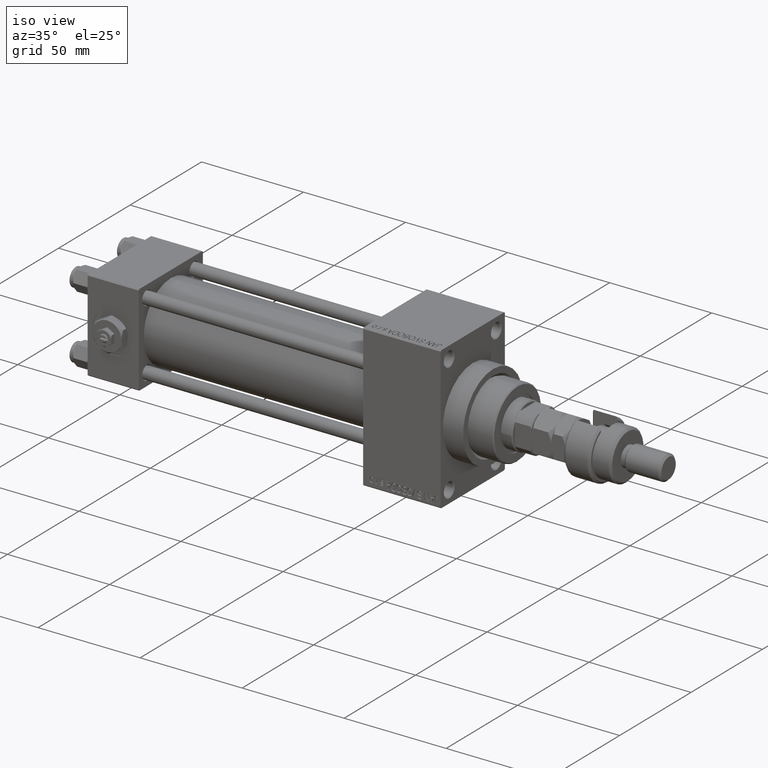
[diagram: clean part render]
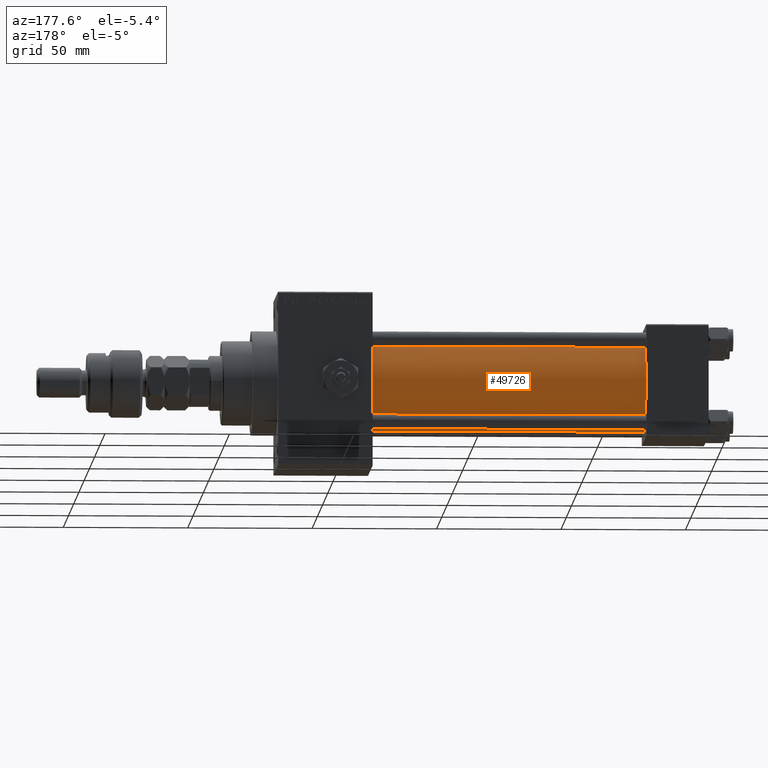
[diagram: tour spotlight — one face highlighted and labeled with its STEP entity id]
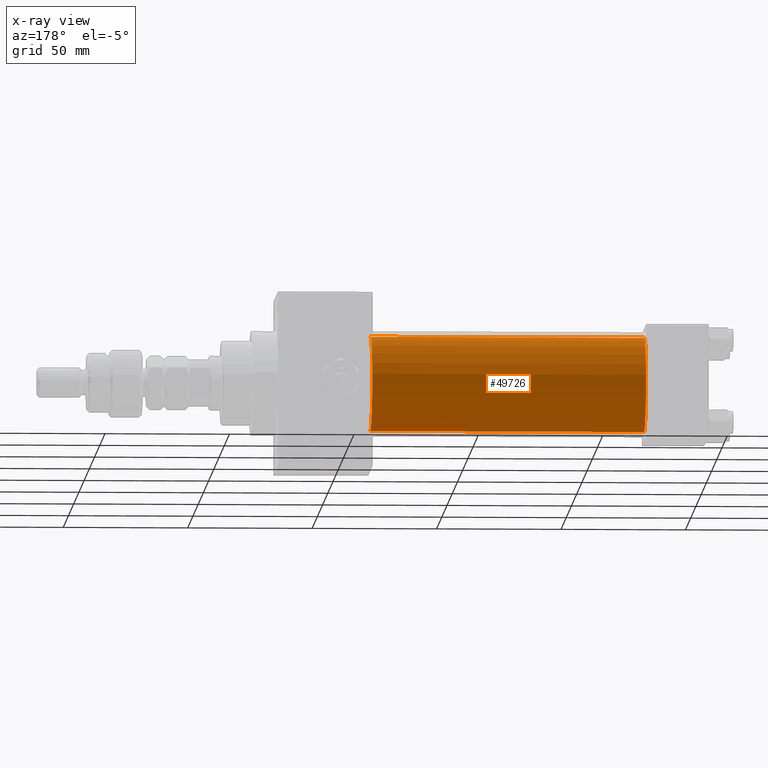
[diagram: x-ray of the same camera — body ghosted, this tour face saturated]
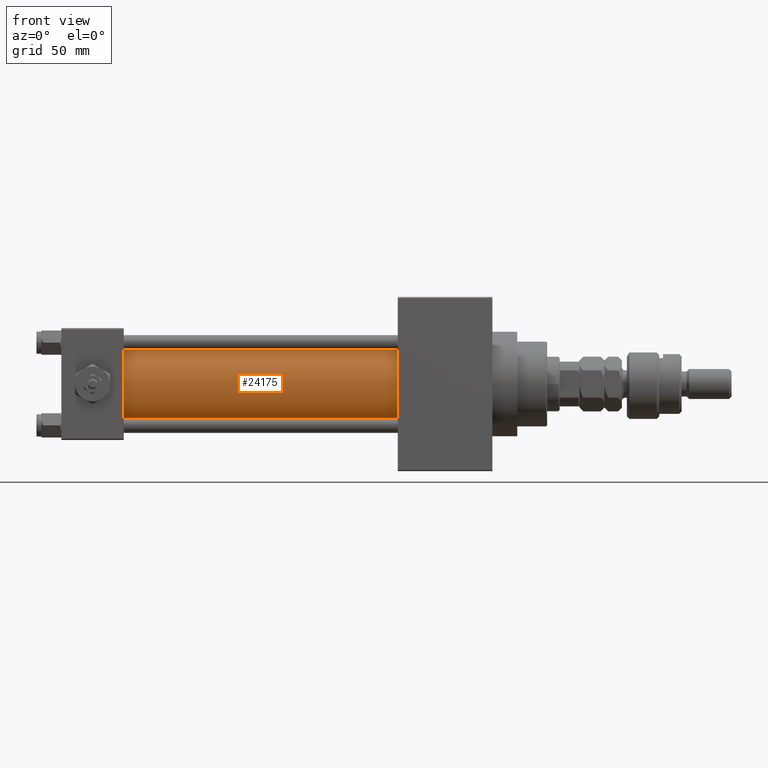
[diagram: tour spotlight — one face highlighted and labeled with its STEP entity id]
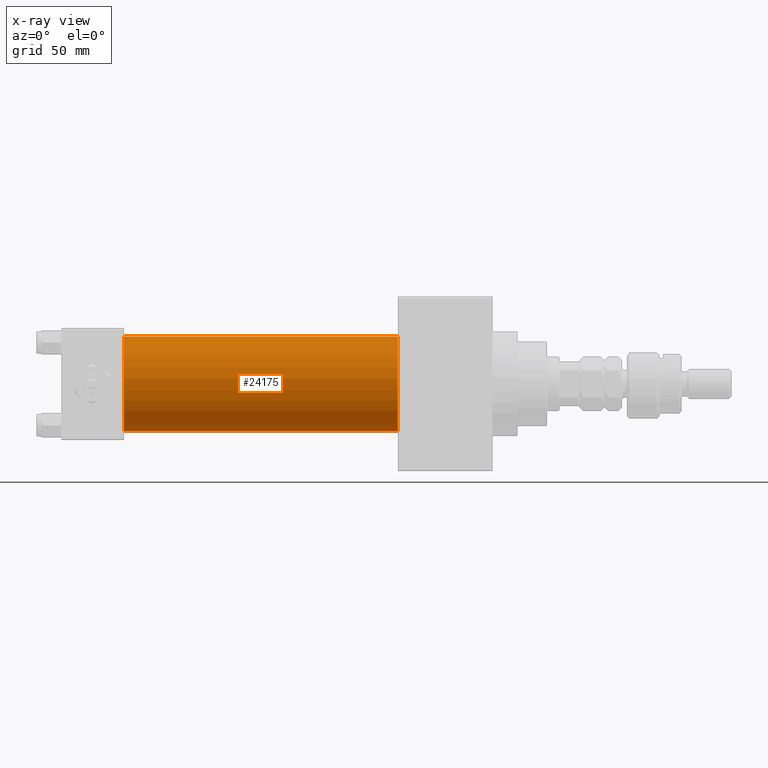
[diagram: x-ray of the same camera — body ghosted, this tour face saturated]
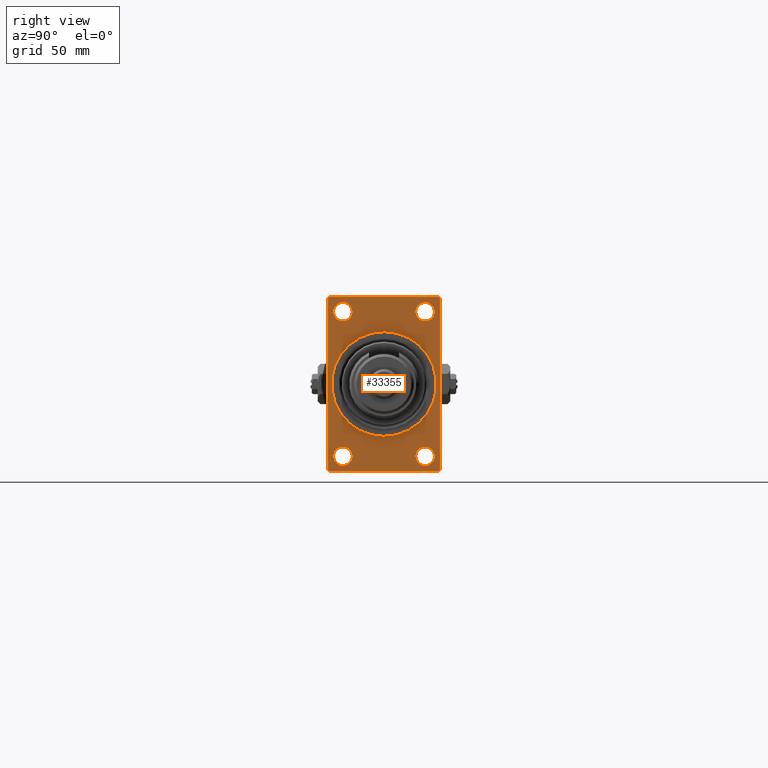
[diagram: tour spotlight — one face highlighted and labeled with its STEP entity id]
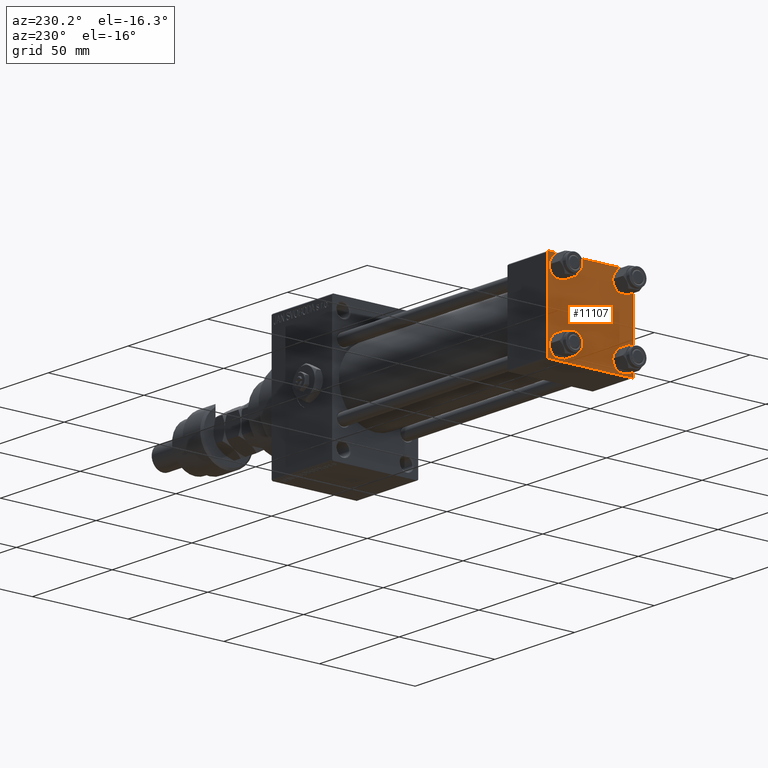
[diagram: tour spotlight — one face highlighted and labeled with its STEP entity id]
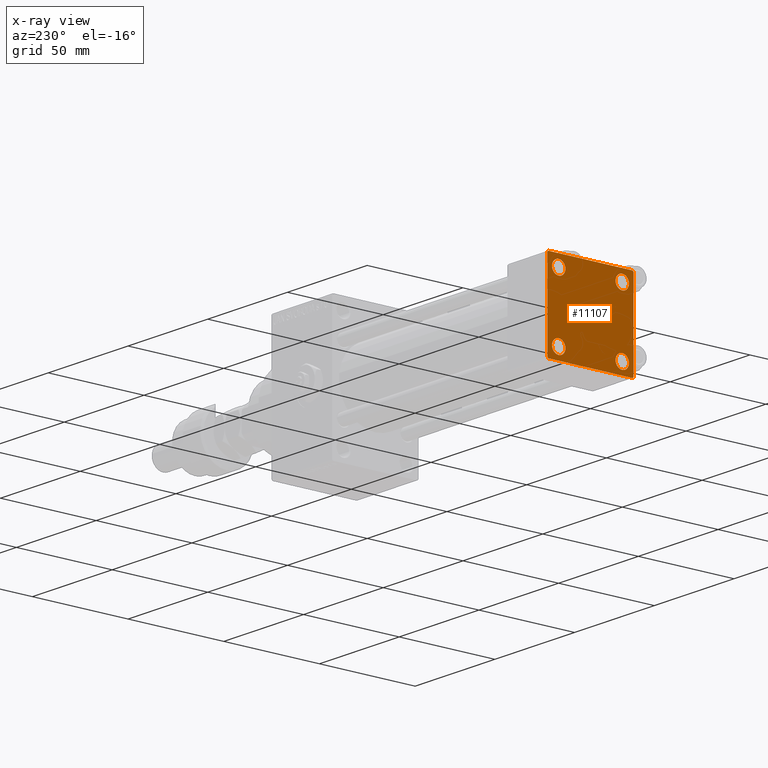
[diagram: x-ray of the same camera — body ghosted, this tour face saturated]
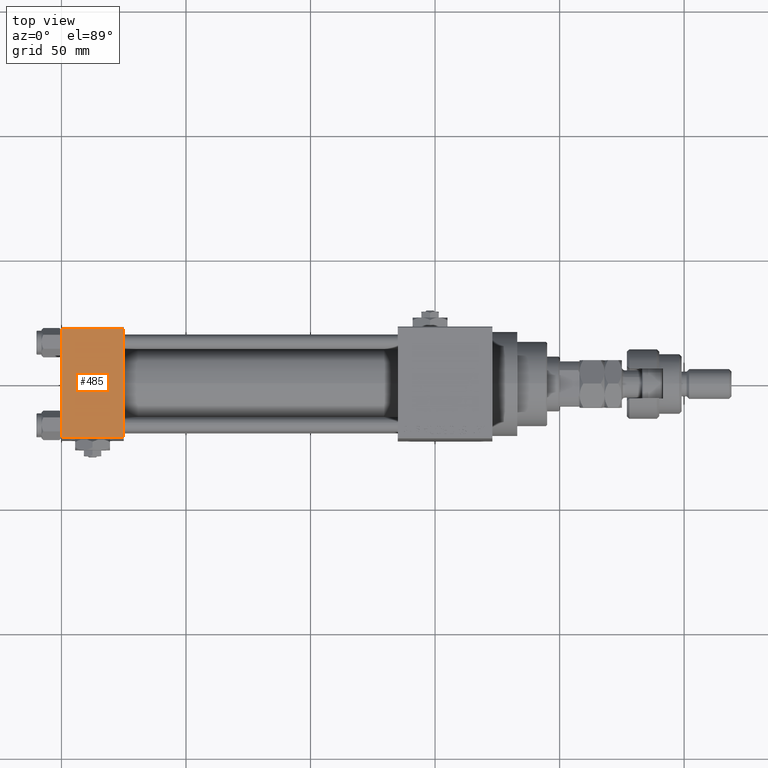
[diagram: tour spotlight — one face highlighted and labeled with its STEP entity id]
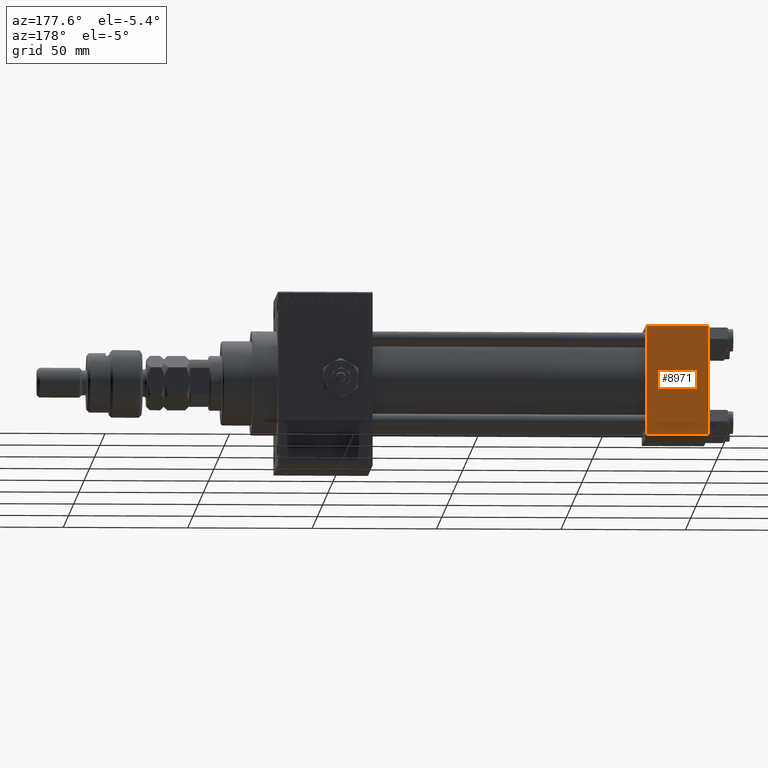
[diagram: tour spotlight — one face highlighted and labeled with its STEP entity id]
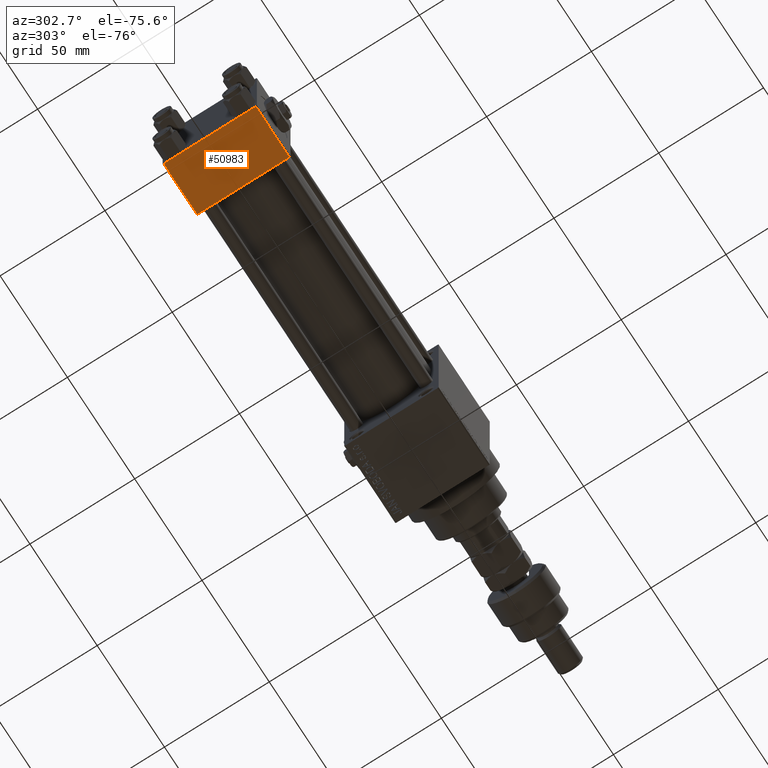
[diagram: tour spotlight — one face highlighted and labeled with its STEP entity id]
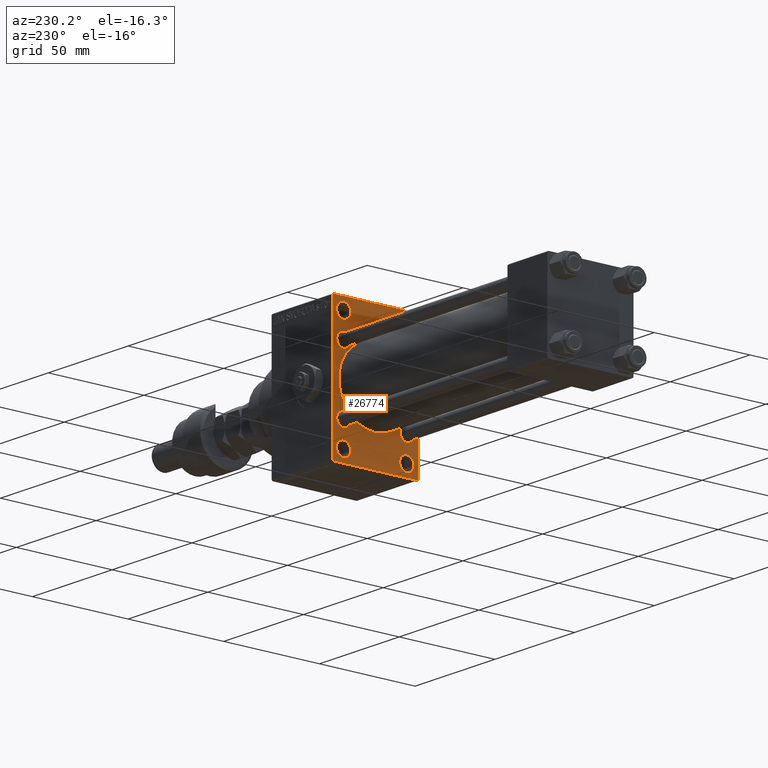
[diagram: tour spotlight — one face highlighted and labeled with its STEP entity id]
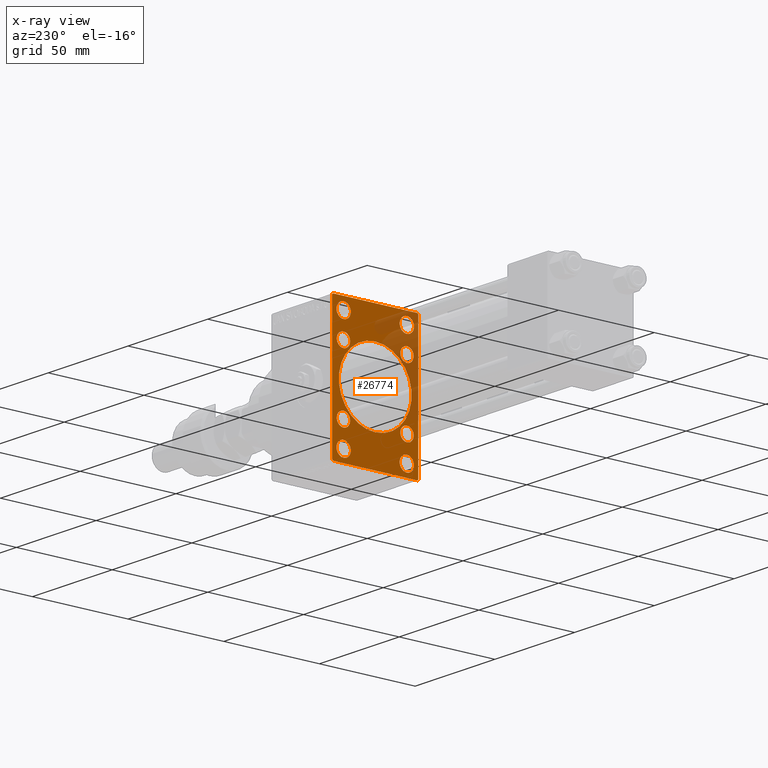
[diagram: x-ray of the same camera — body ghosted, this tour face saturated]
A machine part: a face-by-face anatomy tour. The part has 1274 B-rep faces; the first image is the clean iso view, then the 8 largest visible faces are spotlighted one at a time (largest first), each with its STEP entity span.

Face 1 — auxiliary view, entity #49726. An x-ray twin of the same camera follows (body ghosted, this face saturated) — the face is partly hidden behind the body. In plain terms, the highlighted cylindrical surface (partial cylindrical patch) has radius 19 mm, axis along (-1, -0, -0).
Definition (entity closure, byte-faithful):
#2126 = CARTESIAN_POINT ( 'NONE',  ( 135.0000000000000000, -2.602085213965210642E-15, 19.00000000000000000 ) ) ;
#5984 = CARTESIAN_POINT ( 'NONE',  ( 24.99999999999999289, -2.752562955852396712E-16, -19.00000000000000000 ) ) ;
#7841 = VERTEX_POINT ( 'NONE', #2126 ) ;
#8503 = EDGE_CURVE ( 'NONE', #7841, #49277, #49094, .T. ) ;
#9915 = EDGE_CURVE ( 'NONE', #42321, #7841, #37884, .T. ) ;
#10452 = AXIS2_PLACEMENT_3D ( 'NONE', #39525, #42935, #38774 ) ;
#12013 = CARTESIAN_POINT ( 'NONE',  ( 135.0000000000000000, -2.602085213965210642E-15, 0.000000000000000000 ) ) ;
#12125 = EDGE_CURVE ( 'NONE', #42321, #31580, #18248, .T. ) ;
#12428 = ORIENTED_EDGE ( 'NONE', *, *, #9915, .F. ) ;
#13699 = VECTOR ( 'NONE', #45189, 1000.000000000000000 ) ;
#17087 = CARTESIAN_POINT ( 'NONE',  ( 135.0000000000000000, -2.602085213965210642E-15, 19.00000000000000000 ) ) ;
#18248 = LINE ( 'NONE', #34118, #31308 ) ;
#23474 = FACE_OUTER_BOUND ( 'NONE', #42392, .T. ) ;
#23489 = ORIENTED_EDGE ( 'NONE', *, *, #38571, .T. ) ;
#23984 = DIRECTION ( 'NONE',  ( 0.000000000000000000, 0.000000000000000000, 1.000000000000000000 ) ) ;
#24468 = ORIENTED_EDGE ( 'NONE', *, *, #8503, .F. ) ;
#24494 = AXIS2_PLACEMENT_3D ( 'NONE', #24930, #49385, #45482 ) ;
#24930 = CARTESIAN_POINT ( 'NONE',  ( 24.99999999999999289, -2.602085213965210642E-15, 0.000000000000000000 ) ) ;
#31308 = VECTOR ( 'NONE', #50516, 1000.000000000000000 ) ;
#31413 = CARTESIAN_POINT ( 'NONE',  ( 135.0000000000000000, -2.752562955852396712E-16, -19.00000000000000000 ) ) ;
#31580 = VERTEX_POINT ( 'NONE', #5984 ) ;
#34118 = CARTESIAN_POINT ( 'NONE',  ( 135.0000000000000000, -2.752562955852396712E-16, -19.00000000000000000 ) ) ;
#36212 = DIRECTION ( 'NONE',  ( -1.000000000000000000, -0.000000000000000000, -0.000000000000000000 ) ) ;
#36630 = ORIENTED_EDGE ( 'NONE', *, *, #12125, .T. ) ;
#37884 = CIRCLE ( 'NONE', #10452, 19.00000000000000000 ) ;
#38571 = EDGE_CURVE ( 'NONE', #31580, #49277, #41131, .T. ) ;
#38774 = DIRECTION ( 'NONE',  ( 0.000000000000000000, 0.000000000000000000, -1.000000000000000000 ) ) ;
#38910 = CARTESIAN_POINT ( 'NONE',  ( 24.99999999999999289, -2.602085213965210642E-15, 19.00000000000000000 ) ) ;
#39525 = CARTESIAN_POINT ( 'NONE',  ( 135.0000000000000000, -2.602085213965210642E-15, 0.000000000000000000 ) ) ;
#41131 = CIRCLE ( 'NONE', #24494, 19.00000000000000000 ) ;
#42321 = VERTEX_POINT ( 'NONE', #31413 ) ;
#42392 = EDGE_LOOP ( 'NONE', ( #12428, #36630, #23489, #24468 ) ) ;
#42935 = DIRECTION ( 'NONE',  ( 1.000000000000000000, 0.000000000000000000, 0.000000000000000000 ) ) ;
#45189 = DIRECTION ( 'NONE',  ( -1.000000000000000000, -0.000000000000000000, -0.000000000000000000 ) ) ;
#45482 = DIRECTION ( 'NONE',  ( 0.000000000000000000, 0.000000000000000000, 1.000000000000000000 ) ) ;
#47666 = CYLINDRICAL_SURFACE ( 'NONE', #48066, 19.00000000000000000 ) ;
#48066 = AXIS2_PLACEMENT_3D ( 'NONE', #12013, #36212, #23984 ) ;
#49094 = LINE ( 'NONE', #17087, #13699 ) ;
#49277 = VERTEX_POINT ( 'NONE', #38910 ) ;
#49385 = DIRECTION ( 'NONE',  ( 1.000000000000000000, -0.000000000000000000, 0.000000000000000000 ) ) ;
#49726 = ADVANCED_FACE ( 'NONE', ( #23474 ), #47666, .T. ) ;
#50516 = DIRECTION ( 'NONE',  ( -1.000000000000000000, -0.000000000000000000, -0.000000000000000000 ) ) ;

Face 2 — front view, entity #24175. An x-ray twin of the same camera follows (body ghosted, this face saturated) — the face is partly hidden behind the body. In plain terms, the highlighted cylindrical surface (partial cylindrical patch) has radius 19 mm, axis along (-1, -0, -0).
Definition (entity closure, byte-faithful):
#2126 = CARTESIAN_POINT ( 'NONE',  ( 135.0000000000000000, -2.602085213965210642E-15, 19.00000000000000000 ) ) ;
#4666 = DIRECTION ( 'NONE',  ( 0.000000000000000000, 0.000000000000000000, 1.000000000000000000 ) ) ;
#5984 = CARTESIAN_POINT ( 'NONE',  ( 24.99999999999999289, -2.752562955852396712E-16, -19.00000000000000000 ) ) ;
#6757 = EDGE_CURVE ( 'NONE', #7841, #42321, #7007, .T. ) ;
#7007 = CIRCLE ( 'NONE', #36066, 19.00000000000000000 ) ;
#7584 = CARTESIAN_POINT ( 'NONE',  ( 24.99999999999999289, -2.602085213965210642E-15, 0.000000000000000000 ) ) ;
#7841 = VERTEX_POINT ( 'NONE', #2126 ) ;
#8189 = DIRECTION ( 'NONE',  ( 1.000000000000000000, 0.000000000000000000, 0.000000000000000000 ) ) ;
#8503 = EDGE_CURVE ( 'NONE', #7841, #49277, #49094, .T. ) ;
#9232 = EDGE_LOOP ( 'NONE', ( #38267, #50006, #27964, #40630 ) ) ;
#9590 = DIRECTION ( 'NONE',  ( -1.000000000000000000, -0.000000000000000000, -0.000000000000000000 ) ) ;
#12077 = AXIS2_PLACEMENT_3D ( 'NONE', #7584, #15135, #20068 ) ;
#12125 = EDGE_CURVE ( 'NONE', #42321, #31580, #18248, .T. ) ;
#12897 = CIRCLE ( 'NONE', #12077, 19.00000000000000000 ) ;
#13699 = VECTOR ( 'NONE', #45189, 1000.000000000000000 ) ;
#15135 = DIRECTION ( 'NONE',  ( 1.000000000000000000, -0.000000000000000000, 0.000000000000000000 ) ) ;
#16671 = AXIS2_PLACEMENT_3D ( 'NONE', #28853, #9590, #4666 ) ;
#17087 = CARTESIAN_POINT ( 'NONE',  ( 135.0000000000000000, -2.602085213965210642E-15, 19.00000000000000000 ) ) ;
#18248 = LINE ( 'NONE', #34118, #31308 ) ;
#20068 = DIRECTION ( 'NONE',  ( 0.000000000000000000, 0.000000000000000000, 1.000000000000000000 ) ) ;
#21171 = CARTESIAN_POINT ( 'NONE',  ( 135.0000000000000000, -2.602085213965210642E-15, 0.000000000000000000 ) ) ;
#24175 = ADVANCED_FACE ( 'NONE', ( #28592 ), #48880, .T. ) ;
#27964 = ORIENTED_EDGE ( 'NONE', *, *, #8503, .T. ) ;
#28592 = FACE_OUTER_BOUND ( 'NONE', #9232, .T. ) ;
#28853 = CARTESIAN_POINT ( 'NONE',  ( 135.0000000000000000, -2.602085213965210642E-15, 0.000000000000000000 ) ) ;
#31308 = VECTOR ( 'NONE', #50516, 1000.000000000000000 ) ;
#31413 = CARTESIAN_POINT ( 'NONE',  ( 135.0000000000000000, -2.752562955852396712E-16, -19.00000000000000000 ) ) ;
#31580 = VERTEX_POINT ( 'NONE', #5984 ) ;
#34118 = CARTESIAN_POINT ( 'NONE',  ( 135.0000000000000000, -2.752562955852396712E-16, -19.00000000000000000 ) ) ;
#36066 = AXIS2_PLACEMENT_3D ( 'NONE', #21171, #8189, #48504 ) ;
#38267 = ORIENTED_EDGE ( 'NONE', *, *, #12125, .F. ) ;
#38910 = CARTESIAN_POINT ( 'NONE',  ( 24.99999999999999289, -2.602085213965210642E-15, 19.00000000000000000 ) ) ;
#39424 = EDGE_CURVE ( 'NONE', #49277, #31580, #12897, .T. ) ;
#40630 = ORIENTED_EDGE ( 'NONE', *, *, #39424, .T. ) ;
#42321 = VERTEX_POINT ( 'NONE', #31413 ) ;
#45189 = DIRECTION ( 'NONE',  ( -1.000000000000000000, -0.000000000000000000, -0.000000000000000000 ) ) ;
#48504 = DIRECTION ( 'NONE',  ( 0.000000000000000000, 0.000000000000000000, -1.000000000000000000 ) ) ;
#48880 = CYLINDRICAL_SURFACE ( 'NONE', #16671, 19.00000000000000000 ) ;
#49094 = LINE ( 'NONE', #17087, #13699 ) ;
#49277 = VERTEX_POINT ( 'NONE', #38910 ) ;
#50006 = ORIENTED_EDGE ( 'NONE', *, *, #6757, .F. ) ;
#50516 = DIRECTION ( 'NONE',  ( -1.000000000000000000, -0.000000000000000000, -0.000000000000000000 ) ) ;

Face 3 — right view, entity #33355. In plain terms, the highlighted planar face has unit normal (-1, 0, 0).
Definition (entity closure, byte-faithful):
#824 = LINE ( 'NONE', #8366, #26024 ) ;
#1414 = ORIENTED_EDGE ( 'NONE', *, *, #21068, .F. ) ;
#1432 = CIRCLE ( 'NONE', #32987, 3.750000000000166533 ) ;
#1943 = CARTESIAN_POINT ( 'NONE',  ( 173.0000000000000284, -16.50000000000000000, 29.00000000000000711 ) ) ;
#2014 = VERTEX_POINT ( 'NONE', #42580 ) ;
#2401 = CIRCLE ( 'NONE', #43945, 3.750000000000166533 ) ;
#2703 = ORIENTED_EDGE ( 'NONE', *, *, #51000, .T. ) ;
#2996 = EDGE_CURVE ( 'NONE', #28214, #2014, #19159, .T. ) ;
#3074 = VECTOR ( 'NONE', #32194, 1000.000000000000000 ) ;
#3144 = DIRECTION ( 'NONE',  ( -1.000000000000000000, -0.000000000000000000, -0.000000000000000000 ) ) ;
#3486 = CARTESIAN_POINT ( 'NONE',  ( 173.0000000000000284, 16.50000000000000000, 29.00000000000000355 ) ) ;
#3706 = DIRECTION ( 'NONE',  ( 0.000000000000000000, 0.000000000000000000, 1.000000000000000000 ) ) ;
#4189 = AXIS2_PLACEMENT_3D ( 'NONE', #46012, #41852, #49661 ) ;
#4713 = AXIS2_PLACEMENT_3D ( 'NONE', #23997, #47678, #3706 ) ;
#4923 = CIRCLE ( 'NONE', #48123, 21.00000000000000000 ) ;
#5083 = EDGE_CURVE ( 'NONE', #27091, #24910, #38470, .T. ) ;
#5688 = LINE ( 'NONE', #44984, #13188 ) ;
#5709 = VECTOR ( 'NONE', #8788, 1000.000000000000114 ) ;
#5780 = DIRECTION ( 'NONE',  ( 0.000000000000000000, 0.000000000000000000, 1.000000000000000000 ) ) ;
#6042 = CIRCLE ( 'NONE', #39280, 21.00000000000000000 ) ;
#6184 = CARTESIAN_POINT ( 'NONE',  ( 173.0000000000000284, 0.000000000000000000, 0.000000000000000000 ) ) ;
#6764 = CARTESIAN_POINT ( 'NONE',  ( 173.0000000000000284, -16.50000000000000000, 32.75000000000017764 ) ) ;
#7303 = ORIENTED_EDGE ( 'NONE', *, *, #5083, .T. ) ;
#8041 = DIRECTION ( 'NONE',  ( -1.000000000000000000, -0.000000000000000000, -0.000000000000000000 ) ) ;
#8083 = EDGE_CURVE ( 'NONE', #43927, #27091, #8085, .T. ) ;
#8085 = LINE ( 'NONE', #28363, #17000 ) ;
#8366 = CARTESIAN_POINT ( 'NONE',  ( 173.0000000000000284, -22.00000000000000355, -35.00000000000000000 ) ) ;
#8788 = DIRECTION ( 'NONE',  ( 0.000000000000000000, -0.7071067811865474617, 0.7071067811865474617 ) ) ;
#9441 = VECTOR ( 'NONE', #18707, 1000.000000000000000 ) ;
#10647 = VERTEX_POINT ( 'NONE', #33442 ) ;
#11579 = DIRECTION ( 'NONE',  ( 0.000000000000000000, 0.000000000000000000, 1.000000000000000000 ) ) ;
#13165 = VECTOR ( 'NONE', #40094, 1000.000000000000000 ) ;
#13188 = VECTOR ( 'NONE', #21819, 1000.000000000000000 ) ;
#13277 = CARTESIAN_POINT ( 'NONE',  ( 173.0000000000000284, 2.571758278209441661E-15, -21.00000000000000000 ) ) ;
#13908 = DIRECTION ( 'NONE',  ( -1.000000000000000000, -0.000000000000000000, -0.000000000000000000 ) ) ;
#14071 = CARTESIAN_POINT ( 'NONE',  ( 173.0000000000000284, -16.50000000000000000, 29.00000000000000711 ) ) ;
#14311 = FACE_BOUND ( 'NONE', #32850, .T. ) ;
#14468 = CARTESIAN_POINT ( 'NONE',  ( 173.0000000000000284, 22.49999999999999645, 35.00000000000000000 ) ) ;
#14611 = EDGE_CURVE ( 'NONE', #28018, #41266, #37087, .T. ) ;
#14705 = CARTESIAN_POINT ( 'NONE',  ( 173.0000000000000284, 22.00000000000002132, -35.00000000000000000 ) ) ;
#14946 = EDGE_CURVE ( 'NONE', #41266, #28018, #28771, .T. ) ;
#16651 = DIRECTION ( 'NONE',  ( 0.000000000000000000, -1.000000000000000000, 0.000000000000000000 ) ) ;
#16654 = AXIS2_PLACEMENT_3D ( 'NONE', #3486, #31315, #5780 ) ;
#16681 = DIRECTION ( 'NONE',  ( 0.000000000000000000, 0.7071067811865474617, -0.7071067811865474617 ) ) ;
#17000 = VECTOR ( 'NONE', #16651, 1000.000000000000000 ) ;
#17811 = CARTESIAN_POINT ( 'NONE',  ( 173.0000000000000284, 22.49999999999999645, 34.50000000000000000 ) ) ;
#17956 = FACE_BOUND ( 'NONE', #43365, .T. ) ;
#18707 = DIRECTION ( 'NONE',  ( -0.000000000000000000, -0.7071067811865279218, -0.7071067811865671127 ) ) ;
#19159 = CIRCLE ( 'NONE', #16654, 3.750000000000169642 ) ;
#19240 = ORIENTED_EDGE ( 'NONE', *, *, #47014, .T. ) ;
#19844 = EDGE_CURVE ( 'NONE', #30198, #43927, #24141, .T. ) ;
#20321 = EDGE_CURVE ( 'NONE', #24910, #24196, #43739, .T. ) ;
#21068 = EDGE_CURVE ( 'NONE', #32317, #27065, #4923, .T. ) ;
#21083 = ORIENTED_EDGE ( 'NONE', *, *, #51122, .T. ) ;
#21750 = ORIENTED_EDGE ( 'NONE', *, *, #24568, .F. ) ;
#21819 = DIRECTION ( 'NONE',  ( -0.000000000000000000, 0.7071067811865279218, 0.7071067811865671127 ) ) ;
#21910 = EDGE_LOOP ( 'NONE', ( #31747, #51111, #33027, #2703, #21750, #47949, #49852, #7303 ) ) ;
#22053 = DIRECTION ( 'NONE',  ( 1.000000000000000000, 0.000000000000000000, 0.000000000000000000 ) ) ;
#22901 = DIRECTION ( 'NONE',  ( -0.000000000000000000, 0.000000000000000000, 1.000000000000000000 ) ) ;
#23207 = CARTESIAN_POINT ( 'NONE',  ( 173.0000000000000284, -22.50000000000000355, 35.00000000000000000 ) ) ;
#23333 = CARTESIAN_POINT ( 'NONE',  ( 173.0000000000000284, 16.50000000000000000, 32.75000000000017764 ) ) ;
#23835 = CARTESIAN_POINT ( 'NONE',  ( 173.0000000000000284, 0.000000000000000000, 0.000000000000000000 ) ) ;
#23886 = VERTEX_POINT ( 'NONE', #6764 ) ;
#23997 = CARTESIAN_POINT ( 'NONE',  ( 173.0000000000000284, -16.50000000000000000, -28.99999999999999289 ) ) ;
#24141 = LINE ( 'NONE', #36867, #5709 ) ;
#24196 = VERTEX_POINT ( 'NONE', #32243 ) ;
#24285 = EDGE_CURVE ( 'NONE', #2014, #28214, #49052, .T. ) ;
#24374 = DIRECTION ( 'NONE',  ( 0.000000000000000000, 0.000000000000000000, 1.000000000000000000 ) ) ;
#24568 = EDGE_CURVE ( 'NONE', #30198, #38349, #37623, .T. ) ;
#24639 = LINE ( 'NONE', #28290, #3074 ) ;
#24909 = CARTESIAN_POINT ( 'NONE',  ( 173.0000000000000284, -16.50000000000000000, -32.75000000000017053 ) ) ;
#24910 = VERTEX_POINT ( 'NONE', #46610 ) ;
#25526 = ORIENTED_EDGE ( 'NONE', *, *, #14611, .T. ) ;
#25740 = ORIENTED_EDGE ( 'NONE', *, *, #33760, .F. ) ;
#25819 = ORIENTED_EDGE ( 'NONE', *, *, #44020, .T. ) ;
#25906 = ORIENTED_EDGE ( 'NONE', *, *, #2996, .T. ) ;
#26024 = VECTOR ( 'NONE', #16681, 1000.000000000000114 ) ;
#26534 = FACE_BOUND ( 'NONE', #45699, .T. ) ;
#27065 = VERTEX_POINT ( 'NONE', #31064 ) ;
#27091 = VERTEX_POINT ( 'NONE', #35226 ) ;
#27231 = DIRECTION ( 'NONE',  ( 0.000000000000000000, 0.000000000000000000, -1.000000000000000000 ) ) ;
#27967 = EDGE_LOOP ( 'NONE', ( #25819, #31703 ) ) ;
#28018 = VERTEX_POINT ( 'NONE', #24909 ) ;
#28063 = CARTESIAN_POINT ( 'NONE',  ( 173.0000000000000284, 16.50000000000000000, -28.99999999999999289 ) ) ;
#28214 = VERTEX_POINT ( 'NONE', #23333 ) ;
#28290 = CARTESIAN_POINT ( 'NONE',  ( 173.0000000000000284, 22.49999999999999645, -35.00000000000000000 ) ) ;
#28363 = CARTESIAN_POINT ( 'NONE',  ( 173.0000000000000284, 22.49999999999999645, 35.00000000000000000 ) ) ;
#28365 = CARTESIAN_POINT ( 'NONE',  ( 173.0000000000000284, -16.50000000000000000, -25.24999999999982592 ) ) ;
#28771 = CIRCLE ( 'NONE', #4713, 3.750000000000166533 ) ;
#29654 = FACE_OUTER_BOUND ( 'NONE', #21910, .T. ) ;
#30168 = EDGE_CURVE ( 'NONE', #23886, #41467, #47624, .T. ) ;
#30173 = CARTESIAN_POINT ( 'NONE',  ( 173.0000000000000284, 0.000000000000000000, 0.000000000000000000 ) ) ;
#30198 = VERTEX_POINT ( 'NONE', #17811 ) ;
#30718 = DIRECTION ( 'NONE',  ( 0.000000000000000000, 0.000000000000000000, 1.000000000000000000 ) ) ;
#31064 = CARTESIAN_POINT ( 'NONE',  ( 173.0000000000000284, 0.000000000000000000, 21.00000000000000000 ) ) ;
#31315 = DIRECTION ( 'NONE',  ( -1.000000000000000000, -0.000000000000000000, -0.000000000000000000 ) ) ;
#31703 = ORIENTED_EDGE ( 'NONE', *, *, #30168, .T. ) ;
#31747 = ORIENTED_EDGE ( 'NONE', *, *, #20321, .T. ) ;
#32083 = VERTEX_POINT ( 'NONE', #34162 ) ;
#32194 = DIRECTION ( 'NONE',  ( 0.000000000000000000, -1.000000000000000000, 0.000000000000000000 ) ) ;
#32243 = CARTESIAN_POINT ( 'NONE',  ( 173.0000000000000284, -22.50000000000000355, -34.50000000000000000 ) ) ;
#32317 = VERTEX_POINT ( 'NONE', #13277 ) ;
#32850 = EDGE_LOOP ( 'NONE', ( #19240, #21083 ) ) ;
#32987 = AXIS2_PLACEMENT_3D ( 'NONE', #28063, #8041, #39779 ) ;
#33027 = ORIENTED_EDGE ( 'NONE', *, *, #43280, .F. ) ;
#33355 = ADVANCED_FACE ( 'NONE', ( #49968, #46312, #14311, #17956, #26534, #29654 ), #45534, .F. ) ;
#33442 = CARTESIAN_POINT ( 'NONE',  ( 173.0000000000000284, -21.99999999999998934, -35.00000000000000000 ) ) ;
#33500 = DIRECTION ( 'NONE',  ( 0.000000000000000000, 0.000000000000000000, -1.000000000000000000 ) ) ;
#33760 = EDGE_CURVE ( 'NONE', #27065, #32317, #6042, .T. ) ;
#33982 = DIRECTION ( 'NONE',  ( 0.000000000000000000, 0.000000000000000000, -1.000000000000000000 ) ) ;
#34110 = VERTEX_POINT ( 'NONE', #14705 ) ;
#34162 = CARTESIAN_POINT ( 'NONE',  ( 173.0000000000000284, 16.50000000000000000, -25.24999999999982592 ) ) ;
#34501 = EDGE_CURVE ( 'NONE', #24196, #10647, #824, .T. ) ;
#35226 = CARTESIAN_POINT ( 'NONE',  ( 173.0000000000000284, -22.00000000000001776, 35.00000000000000000 ) ) ;
#35324 = CARTESIAN_POINT ( 'NONE',  ( 173.0000000000000284, 16.50000000000000000, -28.99999999999999289 ) ) ;
#36505 = ORIENTED_EDGE ( 'NONE', *, *, #14946, .T. ) ;
#36867 = CARTESIAN_POINT ( 'NONE',  ( 173.0000000000000284, 21.99999999999999645, 35.00000000000000000 ) ) ;
#37087 = CIRCLE ( 'NONE', #42947, 3.750000000000166533 ) ;
#37622 = AXIS2_PLACEMENT_3D ( 'NONE', #1943, #13908, #42533 ) ;
#37623 = LINE ( 'NONE', #14468, #47421 ) ;
#38349 = VERTEX_POINT ( 'NONE', #47593 ) ;
#38443 = AXIS2_PLACEMENT_3D ( 'NONE', #30173, #46050, #22901 ) ;
#38470 = LINE ( 'NONE', #50454, #9441 ) ;
#38474 = ORIENTED_EDGE ( 'NONE', *, *, #24285, .T. ) ;
#39280 = AXIS2_PLACEMENT_3D ( 'NONE', #6184, #22053, #33500 ) ;
#39779 = DIRECTION ( 'NONE',  ( 0.000000000000000000, 0.000000000000000000, 1.000000000000000000 ) ) ;
#40094 = DIRECTION ( 'NONE',  ( 0.000000000000000000, 0.000000000000000000, -1.000000000000000000 ) ) ;
#40543 = VERTEX_POINT ( 'NONE', #47830 ) ;
#41266 = VERTEX_POINT ( 'NONE', #28365 ) ;
#41467 = VERTEX_POINT ( 'NONE', #47854 ) ;
#41852 = DIRECTION ( 'NONE',  ( -1.000000000000000000, -0.000000000000000000, -0.000000000000000000 ) ) ;
#41907 = CARTESIAN_POINT ( 'NONE',  ( 173.0000000000000284, 21.99999999999999645, 35.00000000000000000 ) ) ;
#42533 = DIRECTION ( 'NONE',  ( 0.000000000000000000, 0.000000000000000000, 1.000000000000000000 ) ) ;
#42580 = CARTESIAN_POINT ( 'NONE',  ( 173.0000000000000284, 16.50000000000000000, 25.24999999999983658 ) ) ;
#42947 = AXIS2_PLACEMENT_3D ( 'NONE', #50637, #46726, #11579 ) ;
#43280 = EDGE_CURVE ( 'NONE', #34110, #10647, #24639, .T. ) ;
#43365 = EDGE_LOOP ( 'NONE', ( #38474, #25906 ) ) ;
#43739 = LINE ( 'NONE', #23207, #13165 ) ;
#43927 = VERTEX_POINT ( 'NONE', #41907 ) ;
#43945 = AXIS2_PLACEMENT_3D ( 'NONE', #35324, #44157, #24374 ) ;
#44020 = EDGE_CURVE ( 'NONE', #41467, #23886, #46306, .T. ) ;
#44157 = DIRECTION ( 'NONE',  ( -1.000000000000000000, -0.000000000000000000, -0.000000000000000000 ) ) ;
#44631 = AXIS2_PLACEMENT_3D ( 'NONE', #14071, #3144, #30718 ) ;
#44984 = CARTESIAN_POINT ( 'NONE',  ( 173.0000000000000284, 22.49999999999999645, -34.50000000000000000 ) ) ;
#45534 = PLANE ( 'NONE',  #38443 ) ;
#45699 = EDGE_LOOP ( 'NONE', ( #25740, #1414 ) ) ;
#46012 = CARTESIAN_POINT ( 'NONE',  ( 173.0000000000000284, 16.50000000000000000, 29.00000000000000355 ) ) ;
#46050 = DIRECTION ( 'NONE',  ( -1.000000000000000000, 0.000000000000000000, -0.000000000000000000 ) ) ;
#46085 = EDGE_LOOP ( 'NONE', ( #25526, #36505 ) ) ;
#46306 = CIRCLE ( 'NONE', #44631, 3.750000000000166533 ) ;
#46312 = FACE_BOUND ( 'NONE', #46085, .T. ) ;
#46610 = CARTESIAN_POINT ( 'NONE',  ( 173.0000000000000284, -22.50000000000000355, 34.50000000000000000 ) ) ;
#46726 = DIRECTION ( 'NONE',  ( -1.000000000000000000, -0.000000000000000000, -0.000000000000000000 ) ) ;
#47014 = EDGE_CURVE ( 'NONE', #40543, #32083, #1432, .T. ) ;
#47421 = VECTOR ( 'NONE', #33982, 1000.000000000000000 ) ;
#47593 = CARTESIAN_POINT ( 'NONE',  ( 173.0000000000000284, 22.49999999999999645, -34.50000000000000000 ) ) ;
#47624 = CIRCLE ( 'NONE', #37622, 3.750000000000166533 ) ;
#47678 = DIRECTION ( 'NONE',  ( -1.000000000000000000, -0.000000000000000000, -0.000000000000000000 ) ) ;
#47830 = CARTESIAN_POINT ( 'NONE',  ( 173.0000000000000284, 16.50000000000000000, -32.75000000000017053 ) ) ;
#47854 = CARTESIAN_POINT ( 'NONE',  ( 173.0000000000000284, -16.50000000000000000, 25.24999999999984368 ) ) ;
#47949 = ORIENTED_EDGE ( 'NONE', *, *, #19844, .T. ) ;
#48123 = AXIS2_PLACEMENT_3D ( 'NONE', #23835, #50916, #27231 ) ;
#49052 = CIRCLE ( 'NONE', #4189, 3.750000000000169642 ) ;
#49661 = DIRECTION ( 'NONE',  ( 0.000000000000000000, 0.000000000000000000, 1.000000000000000000 ) ) ;
#49852 = ORIENTED_EDGE ( 'NONE', *, *, #8083, .T. ) ;
#49968 = FACE_BOUND ( 'NONE', #27967, .T. ) ;
#50454 = CARTESIAN_POINT ( 'NONE',  ( 173.0000000000000284, -22.50000000000000355, 34.50000000000000000 ) ) ;
#50637 = CARTESIAN_POINT ( 'NONE',  ( 173.0000000000000284, -16.50000000000000000, -28.99999999999999289 ) ) ;
#50916 = DIRECTION ( 'NONE',  ( 1.000000000000000000, 0.000000000000000000, 0.000000000000000000 ) ) ;
#51000 = EDGE_CURVE ( 'NONE', #34110, #38349, #5688, .T. ) ;
#51111 = ORIENTED_EDGE ( 'NONE', *, *, #34501, .T. ) ;
#51122 = EDGE_CURVE ( 'NONE', #32083, #40543, #2401, .T. ) ;

Face 4 — auxiliary view, entity #11107. An x-ray twin of the same camera follows (body ghosted, this face saturated) — the face is partly hidden behind the body. In plain terms, the highlighted planar face has unit normal (-1, 0, 0).
Definition (entity closure, byte-faithful):
#810 = DIRECTION ( 'NONE',  ( 0.000000000000000000, 0.000000000000000000, 1.000000000000000000 ) ) ;
#821 = DIRECTION ( 'NONE',  ( 0.000000000000000000, 0.000000000000000000, 1.000000000000000000 ) ) ;
#1437 = VECTOR ( 'NONE', #22795, 1000.000000000000000 ) ;
#1899 = EDGE_CURVE ( 'NONE', #11172, #21914, #20896, .T. ) ;
#2371 = CARTESIAN_POINT ( 'NONE',  ( -0.000000000000000000, -22.24999999999984013, 22.25000000000015277 ) ) ;
#2550 = CARTESIAN_POINT ( 'NONE',  ( 0.000000000000000000, -16.59999999999999076, 16.60000000000000853 ) ) ;
#2802 = ORIENTED_EDGE ( 'NONE', *, *, #23687, .T. ) ;
#2976 = CARTESIAN_POINT ( 'NONE',  ( 0.000000000000000000, -16.59999999999999076, -16.60000000000000853 ) ) ;
#3466 = EDGE_CURVE ( 'NONE', #39254, #42206, #15833, .T. ) ;
#3586 = VECTOR ( 'NONE', #49709, 1000.000000000000000 ) ;
#4089 = VERTEX_POINT ( 'NONE', #32504 ) ;
#5231 = AXIS2_PLACEMENT_3D ( 'NONE', #2550, #22842, #38707 ) ;
#5456 = CARTESIAN_POINT ( 'NONE',  ( 0.000000000000000000, 16.59999999999999787, -16.60000000000000497 ) ) ;
#5470 = CARTESIAN_POINT ( 'NONE',  ( 0.000000000000000000, -22.50000000000000000, 22.50000000000000000 ) ) ;
#6079 = VERTEX_POINT ( 'NONE', #15629 ) ;
#6152 = DIRECTION ( 'NONE',  ( 1.000000000000000000, -0.000000000000000000, 0.000000000000000000 ) ) ;
#6197 = FACE_BOUND ( 'NONE', #6595, .T. ) ;
#6595 = EDGE_LOOP ( 'NONE', ( #37615, #18438 ) ) ;
#6980 = CARTESIAN_POINT ( 'NONE',  ( 0.000000000000000000, 16.59999999999999787, -16.60000000000000497 ) ) ;
#7094 = CARTESIAN_POINT ( 'NONE',  ( 0.000000000000000000, 16.59999999999999787, 16.60000000000000497 ) ) ;
#8365 = CARTESIAN_POINT ( 'NONE',  ( 0.000000000000000000, -16.59999999999999076, 16.60000000000000853 ) ) ;
#8545 = CARTESIAN_POINT ( 'NONE',  ( 0.000000000000000000, 21.99999999999999289, -22.49999999999999645 ) ) ;
#8795 = LINE ( 'NONE', #28306, #21533 ) ;
#8932 = CARTESIAN_POINT ( 'NONE',  ( 0.000000000000000000, -21.99999999999997868, 22.50000000000000000 ) ) ;
#9046 = EDGE_CURVE ( 'NONE', #21914, #11172, #17042, .T. ) ;
#9658 = ORIENTED_EDGE ( 'NONE', *, *, #13488, .T. ) ;
#9692 = VERTEX_POINT ( 'NONE', #26609 ) ;
#10017 = DIRECTION ( 'NONE',  ( 0.000000000000000000, 0.7071067811865474617, -0.7071067811865474617 ) ) ;
#10162 = LINE ( 'NONE', #5470, #3586 ) ;
#10413 = DIRECTION ( 'NONE',  ( 1.000000000000000000, -0.000000000000000000, 0.000000000000000000 ) ) ;
#11107 = ADVANCED_FACE ( 'NONE', ( #22067, #41065, #17649, #6197, #33513 ), #46001, .T. ) ;
#11172 = VERTEX_POINT ( 'NONE', #34297 ) ;
#12971 = DIRECTION ( 'NONE',  ( -0.000000000000000000, -0.7071067811865426878, -0.7071067811865524577 ) ) ;
#13235 = DIRECTION ( 'NONE',  ( 0.000000000000000000, -1.000000000000000000, -7.709882115452476934E-17 ) ) ;
#13488 = EDGE_CURVE ( 'NONE', #19391, #6079, #31147, .T. ) ;
#13740 = DIRECTION ( 'NONE',  ( -0.000000000000000000, 0.000000000000000000, 1.000000000000000000 ) ) ;
#13789 = DIRECTION ( 'NONE',  ( 0.000000000000000000, 0.000000000000000000, 1.000000000000000000 ) ) ;
#13943 = CARTESIAN_POINT ( 'NONE',  ( 0.000000000000000000, -16.59999999999999076, 13.10000000000001030 ) ) ;
#14227 = EDGE_LOOP ( 'NONE', ( #15411, #48310 ) ) ;
#14293 = CARTESIAN_POINT ( 'NONE',  ( 0.000000000000000000, -22.50000000000000000, 22.00000000000000000 ) ) ;
#14472 = VERTEX_POINT ( 'NONE', #13943 ) ;
#15411 = ORIENTED_EDGE ( 'NONE', *, *, #3466, .T. ) ;
#15535 = DIRECTION ( 'NONE',  ( 0.000000000000000000, 0.000000000000000000, 1.000000000000000000 ) ) ;
#15629 = CARTESIAN_POINT ( 'NONE',  ( 0.000000000000000000, 22.50000000000000000, -21.99999999999996803 ) ) ;
#15833 = CIRCLE ( 'NONE', #22501, 3.499999999999996003 ) ;
#15852 = VECTOR ( 'NONE', #10017, 1000.000000000000114 ) ;
#16719 = ORIENTED_EDGE ( 'NONE', *, *, #50997, .F. ) ;
#16880 = CIRCLE ( 'NONE', #34354, 3.499999999999996003 ) ;
#17042 = CIRCLE ( 'NONE', #27862, 3.499999999999996003 ) ;
#17066 = VERTEX_POINT ( 'NONE', #8545 ) ;
#17468 = EDGE_LOOP ( 'NONE', ( #17750, #40329 ) ) ;
#17649 = FACE_BOUND ( 'NONE', #14227, .T. ) ;
#17750 = ORIENTED_EDGE ( 'NONE', *, *, #29994, .T. ) ;
#17907 = DIRECTION ( 'NONE',  ( -1.000000000000000000, 0.000000000000000000, -0.000000000000000000 ) ) ;
#18438 = ORIENTED_EDGE ( 'NONE', *, *, #31474, .T. ) ;
#19273 = AXIS2_PLACEMENT_3D ( 'NONE', #40767, #6152, #48572 ) ;
#19322 = DIRECTION ( 'NONE',  ( 0.000000000000000000, 0.000000000000000000, 1.000000000000000000 ) ) ;
#19391 = VERTEX_POINT ( 'NONE', #33875 ) ;
#20330 = DIRECTION ( 'NONE',  ( 1.000000000000000000, -0.000000000000000000, 0.000000000000000000 ) ) ;
#20779 = EDGE_CURVE ( 'NONE', #17066, #4089, #8795, .T. ) ;
#20896 = CIRCLE ( 'NONE', #19273, 3.499999999999996003 ) ;
#20928 = ORIENTED_EDGE ( 'NONE', *, *, #48758, .T. ) ;
#21045 = CARTESIAN_POINT ( 'NONE',  ( 0.000000000000000000, 16.59999999999999787, 13.10000000000000675 ) ) ;
#21533 = VECTOR ( 'NONE', #36625, 1000.000000000000000 ) ;
#21559 = CARTESIAN_POINT ( 'NONE',  ( 0.000000000000000000, 22.50000000000000000, 22.50000000000000355 ) ) ;
#21914 = VERTEX_POINT ( 'NONE', #50007 ) ;
#22067 = FACE_BOUND ( 'NONE', #17468, .T. ) ;
#22234 = DIRECTION ( 'NONE',  ( 1.000000000000000000, -0.000000000000000000, 0.000000000000000000 ) ) ;
#22501 = AXIS2_PLACEMENT_3D ( 'NONE', #5456, #28379, #810 ) ;
#22795 = DIRECTION ( 'NONE',  ( 0.000000000000000000, -0.7071067811865426878, 0.7071067811865524577 ) ) ;
#22805 = EDGE_LOOP ( 'NONE', ( #28994, #25034 ) ) ;
#22842 = DIRECTION ( 'NONE',  ( 1.000000000000000000, -0.000000000000000000, 0.000000000000000000 ) ) ;
#23464 = AXIS2_PLACEMENT_3D ( 'NONE', #8365, #20330, #821 ) ;
#23687 = EDGE_CURVE ( 'NONE', #9692, #19391, #45650, .T. ) ;
#23930 = VECTOR ( 'NONE', #12971, 1000.000000000000000 ) ;
#24181 = VERTEX_POINT ( 'NONE', #21045 ) ;
#24280 = CIRCLE ( 'NONE', #23464, 3.499999999999996003 ) ;
#24746 = AXIS2_PLACEMENT_3D ( 'NONE', #6980, #27502, #15535 ) ;
#25034 = ORIENTED_EDGE ( 'NONE', *, *, #9046, .T. ) ;
#25135 = ORIENTED_EDGE ( 'NONE', *, *, #34631, .F. ) ;
#26400 = CARTESIAN_POINT ( 'NONE',  ( 0.000000000000000000, 22.24999999999999645, 22.24999999999999645 ) ) ;
#26609 = CARTESIAN_POINT ( 'NONE',  ( 0.000000000000000000, 21.99999999999999289, 22.50000000000000355 ) ) ;
#27502 = DIRECTION ( 'NONE',  ( 1.000000000000000000, -0.000000000000000000, 0.000000000000000000 ) ) ;
#27862 = AXIS2_PLACEMENT_3D ( 'NONE', #2976, #22234, #42530 ) ;
#28219 = VERTEX_POINT ( 'NONE', #8932 ) ;
#28306 = CARTESIAN_POINT ( 'NONE',  ( 0.000000000000000000, 22.50000000000000000, -22.49999999999999645 ) ) ;
#28379 = DIRECTION ( 'NONE',  ( 1.000000000000000000, -0.000000000000000000, 0.000000000000000000 ) ) ;
#28994 = ORIENTED_EDGE ( 'NONE', *, *, #1899, .T. ) ;
#29994 = EDGE_CURVE ( 'NONE', #43728, #14472, #46775, .T. ) ;
#30423 = AXIS2_PLACEMENT_3D ( 'NONE', #33257, #17907, #13740 ) ;
#31147 = LINE ( 'NONE', #34296, #48682 ) ;
#31347 = CARTESIAN_POINT ( 'NONE',  ( 0.000000000000000000, -22.25000000000014566, -22.24999999999984013 ) ) ;
#31474 = EDGE_CURVE ( 'NONE', #24181, #44792, #16880, .T. ) ;
#32242 = EDGE_CURVE ( 'NONE', #44792, #24181, #41816, .T. ) ;
#32340 = EDGE_CURVE ( 'NONE', #14472, #43728, #24280, .T. ) ;
#32465 = ORIENTED_EDGE ( 'NONE', *, *, #44060, .T. ) ;
#32504 = CARTESIAN_POINT ( 'NONE',  ( 0.000000000000000000, -21.99999999999997158, -22.50000000000000711 ) ) ;
#33257 = CARTESIAN_POINT ( 'NONE',  ( 0.000000000000000000, 0.000000000000000000, 0.000000000000000000 ) ) ;
#33513 = FACE_OUTER_BOUND ( 'NONE', #51479, .T. ) ;
#33563 = CARTESIAN_POINT ( 'NONE',  ( 0.000000000000000000, 16.59999999999999787, 16.60000000000000497 ) ) ;
#33875 = CARTESIAN_POINT ( 'NONE',  ( 0.000000000000000000, 22.50000000000000000, 21.99999999999999645 ) ) ;
#34296 = CARTESIAN_POINT ( 'NONE',  ( 0.000000000000000000, 22.50000000000000000, 22.50000000000000355 ) ) ;
#34297 = CARTESIAN_POINT ( 'NONE',  ( 0.000000000000000000, -16.59999999999999076, -13.10000000000001030 ) ) ;
#34354 = AXIS2_PLACEMENT_3D ( 'NONE', #33563, #10413, #13789 ) ;
#34631 = EDGE_CURVE ( 'NONE', #38820, #43841, #10162, .T. ) ;
#36156 = CARTESIAN_POINT ( 'NONE',  ( 0.000000000000000000, 16.59999999999999787, -20.10000000000000142 ) ) ;
#36625 = DIRECTION ( 'NONE',  ( 0.000000000000000000, -1.000000000000000000, -2.312964634635742957E-16 ) ) ;
#36900 = LINE ( 'NONE', #48873, #23930 ) ;
#37615 = ORIENTED_EDGE ( 'NONE', *, *, #32242, .T. ) ;
#37749 = DIRECTION ( 'NONE',  ( -0.000000000000000000, 0.7071067811865525687, 0.7071067811865425767 ) ) ;
#38707 = DIRECTION ( 'NONE',  ( 0.000000000000000000, 0.000000000000000000, 1.000000000000000000 ) ) ;
#38820 = VERTEX_POINT ( 'NONE', #14293 ) ;
#38907 = CIRCLE ( 'NONE', #24746, 3.499999999999996003 ) ;
#38913 = LINE ( 'NONE', #31347, #1437 ) ;
#39085 = DIRECTION ( 'NONE',  ( 1.000000000000000000, -0.000000000000000000, 0.000000000000000000 ) ) ;
#39254 = VERTEX_POINT ( 'NONE', #49226 ) ;
#39324 = AXIS2_PLACEMENT_3D ( 'NONE', #7094, #39085, #19322 ) ;
#39815 = ORIENTED_EDGE ( 'NONE', *, *, #44275, .T. ) ;
#40329 = ORIENTED_EDGE ( 'NONE', *, *, #32340, .T. ) ;
#40575 = LINE ( 'NONE', #21559, #48101 ) ;
#40767 = CARTESIAN_POINT ( 'NONE',  ( 0.000000000000000000, -16.59999999999999076, -16.60000000000000853 ) ) ;
#41065 = FACE_BOUND ( 'NONE', #22805, .T. ) ;
#41134 = CARTESIAN_POINT ( 'NONE',  ( 0.000000000000000000, -22.50000000000000000, -21.99999999999997158 ) ) ;
#41659 = LINE ( 'NONE', #2371, #43004 ) ;
#41816 = CIRCLE ( 'NONE', #39324, 3.499999999999996003 ) ;
#42206 = VERTEX_POINT ( 'NONE', #36156 ) ;
#42530 = DIRECTION ( 'NONE',  ( 0.000000000000000000, 0.000000000000000000, 1.000000000000000000 ) ) ;
#43004 = VECTOR ( 'NONE', #37749, 999.9999999999998863 ) ;
#43728 = VERTEX_POINT ( 'NONE', #45124 ) ;
#43841 = VERTEX_POINT ( 'NONE', #41134 ) ;
#44060 = EDGE_CURVE ( 'NONE', #38820, #28219, #41659, .T. ) ;
#44275 = EDGE_CURVE ( 'NONE', #4089, #43841, #38913, .T. ) ;
#44792 = VERTEX_POINT ( 'NONE', #47615 ) ;
#45124 = CARTESIAN_POINT ( 'NONE',  ( 0.000000000000000000, -16.59999999999999076, 20.10000000000000853 ) ) ;
#45650 = LINE ( 'NONE', #26400, #15852 ) ;
#46001 = PLANE ( 'NONE',  #30423 ) ;
#46775 = CIRCLE ( 'NONE', #5231, 3.499999999999996003 ) ;
#47615 = CARTESIAN_POINT ( 'NONE',  ( 0.000000000000000000, 16.59999999999999787, 20.10000000000000142 ) ) ;
#48101 = VECTOR ( 'NONE', #13235, 1000.000000000000000 ) ;
#48310 = ORIENTED_EDGE ( 'NONE', *, *, #49045, .T. ) ;
#48572 = DIRECTION ( 'NONE',  ( 0.000000000000000000, 0.000000000000000000, 1.000000000000000000 ) ) ;
#48682 = VECTOR ( 'NONE', #50690, 1000.000000000000000 ) ;
#48758 = EDGE_CURVE ( 'NONE', #6079, #17066, #36900, .T. ) ;
#48873 = CARTESIAN_POINT ( 'NONE',  ( 0.000000000000000000, 22.25000000000014566, -22.24999999999984013 ) ) ;
#49045 = EDGE_CURVE ( 'NONE', #42206, #39254, #38907, .T. ) ;
#49226 = CARTESIAN_POINT ( 'NONE',  ( 0.000000000000000000, 16.59999999999999787, -13.10000000000000675 ) ) ;
#49709 = DIRECTION ( 'NONE',  ( 0.000000000000000000, 0.000000000000000000, -1.000000000000000000 ) ) ;
#50007 = CARTESIAN_POINT ( 'NONE',  ( 0.000000000000000000, -16.59999999999999076, -20.10000000000000497 ) ) ;
#50243 = ORIENTED_EDGE ( 'NONE', *, *, #20779, .T. ) ;
#50690 = DIRECTION ( 'NONE',  ( 0.000000000000000000, 0.000000000000000000, -1.000000000000000000 ) ) ;
#50997 = EDGE_CURVE ( 'NONE', #9692, #28219, #40575, .T. ) ;
#51479 = EDGE_LOOP ( 'NONE', ( #9658, #20928, #50243, #39815, #25135, #32465, #16719, #2802 ) ) ;

Face 5 — top view, entity #485. In plain terms, the highlighted planar face has unit normal (0, 0, -1).
Definition (entity closure, byte-faithful):
#485 = ADVANCED_FACE ( 'NONE', ( #18323 ), #46150, .F. ) ;
#1276 = LINE ( 'NONE', #29617, #51420 ) ;
#2327 = CARTESIAN_POINT ( 'NONE',  ( 25.00000000000000000, 22.50000000000000000, 22.50000000000000355 ) ) ;
#2526 = CARTESIAN_POINT ( 'NONE',  ( 25.00000000000000000, 21.99999999999999289, 22.50000000000000355 ) ) ;
#2666 = ORIENTED_EDGE ( 'NONE', *, *, #50942, .T. ) ;
#2689 = VERTEX_POINT ( 'NONE', #2526 ) ;
#8932 = CARTESIAN_POINT ( 'NONE',  ( 0.000000000000000000, -21.99999999999997868, 22.50000000000000000 ) ) ;
#9692 = VERTEX_POINT ( 'NONE', #26609 ) ;
#12531 = AXIS2_PLACEMENT_3D ( 'NONE', #35211, #18840, #31298 ) ;
#13235 = DIRECTION ( 'NONE',  ( 0.000000000000000000, -1.000000000000000000, -7.709882115452476934E-17 ) ) ;
#15305 = DIRECTION ( 'NONE',  ( -1.000000000000000000, 0.000000000000000000, 0.000000000000000000 ) ) ;
#15494 = ORIENTED_EDGE ( 'NONE', *, *, #43100, .T. ) ;
#17142 = CARTESIAN_POINT ( 'NONE',  ( 25.00000000000000000, -21.99999999999997868, 22.50000000000000000 ) ) ;
#18052 = EDGE_LOOP ( 'NONE', ( #44106, #2666, #24763, #15494 ) ) ;
#18323 = FACE_OUTER_BOUND ( 'NONE', #18052, .T. ) ;
#18840 = DIRECTION ( 'NONE',  ( 0.000000000000000000, 7.709882115452476934E-17, -1.000000000000000000 ) ) ;
#21559 = CARTESIAN_POINT ( 'NONE',  ( 0.000000000000000000, 22.50000000000000000, 22.50000000000000355 ) ) ;
#22094 = LINE ( 'NONE', #2327, #47080 ) ;
#24763 = ORIENTED_EDGE ( 'NONE', *, *, #45966, .F. ) ;
#26609 = CARTESIAN_POINT ( 'NONE',  ( 0.000000000000000000, 21.99999999999999289, 22.50000000000000355 ) ) ;
#28219 = VERTEX_POINT ( 'NONE', #8932 ) ;
#29617 = CARTESIAN_POINT ( 'NONE',  ( 25.00000000000000000, -21.99999999999999289, 22.50000000000000000 ) ) ;
#30931 = CARTESIAN_POINT ( 'NONE',  ( 0.000000000000000000, 21.99999999999999289, 22.50000000000000355 ) ) ;
#31177 = DIRECTION ( 'NONE',  ( 0.000000000000000000, -1.000000000000000000, -7.709882115452476934E-17 ) ) ;
#31298 = DIRECTION ( 'NONE',  ( 0.000000000000000000, 1.000000000000000000, 7.709882115452476934E-17 ) ) ;
#35211 = CARTESIAN_POINT ( 'NONE',  ( 25.00000000000000000, 22.50000000000000000, 22.50000000000000355 ) ) ;
#40575 = LINE ( 'NONE', #21559, #48101 ) ;
#41077 = DIRECTION ( 'NONE',  ( 1.000000000000000000, 0.000000000000000000, 0.000000000000000000 ) ) ;
#42643 = LINE ( 'NONE', #30931, #46262 ) ;
#43100 = EDGE_CURVE ( 'NONE', #2689, #9692, #42643, .T. ) ;
#44106 = ORIENTED_EDGE ( 'NONE', *, *, #50997, .T. ) ;
#45966 = EDGE_CURVE ( 'NONE', #2689, #50973, #22094, .T. ) ;
#46150 = PLANE ( 'NONE',  #12531 ) ;
#46262 = VECTOR ( 'NONE', #15305, 1000.000000000000000 ) ;
#47080 = VECTOR ( 'NONE', #31177, 1000.000000000000000 ) ;
#48101 = VECTOR ( 'NONE', #13235, 1000.000000000000000 ) ;
#50942 = EDGE_CURVE ( 'NONE', #28219, #50973, #1276, .T. ) ;
#50973 = VERTEX_POINT ( 'NONE', #17142 ) ;
#50997 = EDGE_CURVE ( 'NONE', #9692, #28219, #40575, .T. ) ;
#51420 = VECTOR ( 'NONE', #41077, 1000.000000000000000 ) ;

Face 6 — auxiliary view, entity #8971. In plain terms, the highlighted planar face has unit normal (0, 1, 0).
Definition (entity closure, byte-faithful):
#3265 = VECTOR ( 'NONE', #7463, 1000.000000000000000 ) ;
#4138 = CARTESIAN_POINT ( 'NONE',  ( 25.00000000000000000, 22.50000000000000000, -21.99999999999996803 ) ) ;
#5070 = DIRECTION ( 'NONE',  ( -0.000000000000000000, 1.000000000000000000, 0.000000000000000000 ) ) ;
#5757 = ORIENTED_EDGE ( 'NONE', *, *, #51477, .T. ) ;
#5929 = DIRECTION ( 'NONE',  ( 0.000000000000000000, 0.000000000000000000, -1.000000000000000000 ) ) ;
#6079 = VERTEX_POINT ( 'NONE', #15629 ) ;
#7463 = DIRECTION ( 'NONE',  ( 1.000000000000000000, 0.000000000000000000, 0.000000000000000000 ) ) ;
#7710 = CARTESIAN_POINT ( 'NONE',  ( 25.00000000000000000, 22.50000000000000000, 21.99999999999999645 ) ) ;
#8971 = ADVANCED_FACE ( 'NONE', ( #21454 ), #44878, .T. ) ;
#9520 = VECTOR ( 'NONE', #5929, 1000.000000000000000 ) ;
#11111 = LINE ( 'NONE', #7710, #3265 ) ;
#11472 = ORIENTED_EDGE ( 'NONE', *, *, #21072, .T. ) ;
#13164 = VERTEX_POINT ( 'NONE', #4138 ) ;
#13488 = EDGE_CURVE ( 'NONE', #19391, #6079, #31147, .T. ) ;
#15629 = CARTESIAN_POINT ( 'NONE',  ( 0.000000000000000000, 22.50000000000000000, -21.99999999999996803 ) ) ;
#19391 = VERTEX_POINT ( 'NONE', #33875 ) ;
#19920 = ORIENTED_EDGE ( 'NONE', *, *, #13488, .F. ) ;
#21072 = EDGE_CURVE ( 'NONE', #19391, #36150, #11111, .T. ) ;
#21454 = FACE_OUTER_BOUND ( 'NONE', #37505, .T. ) ;
#23305 = DIRECTION ( 'NONE',  ( -1.000000000000000000, 0.000000000000000000, 0.000000000000000000 ) ) ;
#23598 = ORIENTED_EDGE ( 'NONE', *, *, #37496, .T. ) ;
#25100 = CARTESIAN_POINT ( 'NONE',  ( 25.00000000000000000, 22.50000000000000000, 22.50000000000000355 ) ) ;
#27451 = LINE ( 'NONE', #35020, #46450 ) ;
#31147 = LINE ( 'NONE', #34296, #48682 ) ;
#33875 = CARTESIAN_POINT ( 'NONE',  ( 0.000000000000000000, 22.50000000000000000, 21.99999999999999645 ) ) ;
#34296 = CARTESIAN_POINT ( 'NONE',  ( 0.000000000000000000, 22.50000000000000000, 22.50000000000000355 ) ) ;
#35020 = CARTESIAN_POINT ( 'NONE',  ( 25.00000000000000000, 22.50000000000000000, -21.99999999999998224 ) ) ;
#36150 = VERTEX_POINT ( 'NONE', #40792 ) ;
#37149 = LINE ( 'NONE', #48863, #9520 ) ;
#37496 = EDGE_CURVE ( 'NONE', #36150, #13164, #37149, .T. ) ;
#37505 = EDGE_LOOP ( 'NONE', ( #23598, #5757, #19920, #11472 ) ) ;
#40792 = CARTESIAN_POINT ( 'NONE',  ( 25.00000000000000000, 22.50000000000000000, 21.99999999999999645 ) ) ;
#44878 = PLANE ( 'NONE',  #47795 ) ;
#45129 = DIRECTION ( 'NONE',  ( 0.000000000000000000, -0.000000000000000000, 1.000000000000000000 ) ) ;
#46450 = VECTOR ( 'NONE', #23305, 1000.000000000000000 ) ;
#47795 = AXIS2_PLACEMENT_3D ( 'NONE', #25100, #5070, #45129 ) ;
#48682 = VECTOR ( 'NONE', #50690, 1000.000000000000000 ) ;
#48863 = CARTESIAN_POINT ( 'NONE',  ( 25.00000000000000000, 22.50000000000000000, 22.50000000000000355 ) ) ;
#50690 = DIRECTION ( 'NONE',  ( 0.000000000000000000, 0.000000000000000000, -1.000000000000000000 ) ) ;
#51477 = EDGE_CURVE ( 'NONE', #13164, #6079, #27451, .T. ) ;

Face 7 — auxiliary view, entity #50983. In plain terms, the highlighted planar face has unit normal (0, 0, -1).
Definition (entity closure, byte-faithful):
#2820 = VECTOR ( 'NONE', #3954, 1000.000000000000000 ) ;
#3450 = LINE ( 'NONE', #19328, #2820 ) ;
#3954 = DIRECTION ( 'NONE',  ( 1.000000000000000000, 0.000000000000000000, 0.000000000000000000 ) ) ;
#4089 = VERTEX_POINT ( 'NONE', #32504 ) ;
#5001 = VECTOR ( 'NONE', #45452, 1000.000000000000000 ) ;
#8545 = CARTESIAN_POINT ( 'NONE',  ( 0.000000000000000000, 21.99999999999999289, -22.49999999999999645 ) ) ;
#8795 = LINE ( 'NONE', #28306, #21533 ) ;
#9031 = ORIENTED_EDGE ( 'NONE', *, *, #43913, .T. ) ;
#9136 = LINE ( 'NONE', #41397, #51285 ) ;
#12730 = FACE_OUTER_BOUND ( 'NONE', #38560, .T. ) ;
#13706 = VERTEX_POINT ( 'NONE', #37352 ) ;
#14877 = AXIS2_PLACEMENT_3D ( 'NONE', #25466, #49399, #41344 ) ;
#17066 = VERTEX_POINT ( 'NONE', #8545 ) ;
#19328 = CARTESIAN_POINT ( 'NONE',  ( 25.00000000000000000, 21.99999999999999289, -22.49999999999999645 ) ) ;
#20779 = EDGE_CURVE ( 'NONE', #17066, #4089, #8795, .T. ) ;
#21533 = VECTOR ( 'NONE', #36625, 1000.000000000000000 ) ;
#22135 = DIRECTION ( 'NONE',  ( -1.000000000000000000, 0.000000000000000000, 0.000000000000000000 ) ) ;
#23351 = EDGE_CURVE ( 'NONE', #13706, #30866, #29576, .T. ) ;
#25466 = CARTESIAN_POINT ( 'NONE',  ( 25.00000000000000000, 22.50000000000000000, -22.49999999999999645 ) ) ;
#26722 = CARTESIAN_POINT ( 'NONE',  ( 25.00000000000000000, 22.50000000000000000, -22.49999999999999645 ) ) ;
#28306 = CARTESIAN_POINT ( 'NONE',  ( 0.000000000000000000, 22.50000000000000000, -22.49999999999999645 ) ) ;
#29576 = LINE ( 'NONE', #26722, #5001 ) ;
#30866 = VERTEX_POINT ( 'NONE', #49044 ) ;
#32504 = CARTESIAN_POINT ( 'NONE',  ( 0.000000000000000000, -21.99999999999997158, -22.50000000000000711 ) ) ;
#35408 = EDGE_CURVE ( 'NONE', #17066, #13706, #3450, .T. ) ;
#36625 = DIRECTION ( 'NONE',  ( 0.000000000000000000, -1.000000000000000000, -2.312964634635742957E-16 ) ) ;
#37352 = CARTESIAN_POINT ( 'NONE',  ( 25.00000000000000000, 21.99999999999999289, -22.49999999999999645 ) ) ;
#38560 = EDGE_LOOP ( 'NONE', ( #38590, #50593, #39577, #9031 ) ) ;
#38590 = ORIENTED_EDGE ( 'NONE', *, *, #20779, .F. ) ;
#39577 = ORIENTED_EDGE ( 'NONE', *, *, #23351, .T. ) ;
#41344 = DIRECTION ( 'NONE',  ( 0.000000000000000000, 1.000000000000000000, 2.312964634635742957E-16 ) ) ;
#41397 = CARTESIAN_POINT ( 'NONE',  ( 0.000000000000000000, -21.99999999999998579, -22.50000000000000711 ) ) ;
#43913 = EDGE_CURVE ( 'NONE', #30866, #4089, #9136, .T. ) ;
#45452 = DIRECTION ( 'NONE',  ( 0.000000000000000000, -1.000000000000000000, -2.312964634635742957E-16 ) ) ;
#48628 = PLANE ( 'NONE',  #14877 ) ;
#49044 = CARTESIAN_POINT ( 'NONE',  ( 25.00000000000000000, -21.99999999999997158, -22.50000000000000711 ) ) ;
#49399 = DIRECTION ( 'NONE',  ( 0.000000000000000000, 2.312964634635742957E-16, -1.000000000000000000 ) ) ;
#50593 = ORIENTED_EDGE ( 'NONE', *, *, #35408, .T. ) ;
#50983 = ADVANCED_FACE ( 'NONE', ( #12730 ), #48628, .T. ) ;
#51285 = VECTOR ( 'NONE', #22135, 1000.000000000000000 ) ;

Face 8 — auxiliary view, entity #26774. An x-ray twin of the same camera follows (body ghosted, this face saturated) — the face is partly hidden behind the body. In plain terms, the highlighted planar face has unit normal (-1, 0, 0).
Definition (entity closure, byte-faithful):
#48 = DIRECTION ( 'NONE',  ( 0.000000000000000000, 0.000000000000000000, 1.000000000000000000 ) ) ;
#219 = EDGE_LOOP ( 'NONE', ( #36105, #39798 ) ) ;
#395 = CARTESIAN_POINT ( 'NONE',  ( 135.0000000000000000, 16.59999999999999787, -20.10000000000000853 ) ) ;
#519 = VERTEX_POINT ( 'NONE', #14923 ) ;
#710 = CARTESIAN_POINT ( 'NONE',  ( 135.0000000000000000, -16.59999999999999076, -16.60000000000000853 ) ) ;
#863 = CARTESIAN_POINT ( 'NONE',  ( 135.0000000000000000, -16.59999999999999076, -20.10000000000001208 ) ) ;
#1621 = ORIENTED_EDGE ( 'NONE', *, *, #29113, .T. ) ;
#1788 = LINE ( 'NONE', #42104, #12955 ) ;
#1790 = VERTEX_POINT ( 'NONE', #31420 ) ;
#2109 = VERTEX_POINT ( 'NONE', #395 ) ;
#2126 = CARTESIAN_POINT ( 'NONE',  ( 135.0000000000000000, -2.602085213965210642E-15, 19.00000000000000000 ) ) ;
#2418 = CARTESIAN_POINT ( 'NONE',  ( 135.0000000000000000, -16.50000000000000000, 29.00000000000000711 ) ) ;
#2957 = DIRECTION ( 'NONE',  ( 0.000000000000000000, 0.000000000000000000, 1.000000000000000000 ) ) ;
#3061 = CARTESIAN_POINT ( 'NONE',  ( 135.0000000000000000, 22.49999999999999645, 35.00000000000000000 ) ) ;
#3968 = CARTESIAN_POINT ( 'NONE',  ( 135.0000000000000000, -16.59999999999999076, 16.60000000000000853 ) ) ;
#3994 = VERTEX_POINT ( 'NONE', #7553 ) ;
#4036 = EDGE_CURVE ( 'NONE', #6610, #7387, #10906, .T. ) ;
#4088 = DIRECTION ( 'NONE',  ( 0.000000000000000000, 0.000000000000000000, 1.000000000000000000 ) ) ;
#4092 = LINE ( 'NONE', #23615, #26282 ) ;
#5055 = EDGE_LOOP ( 'NONE', ( #17076, #41033 ) ) ;
#5326 = DIRECTION ( 'NONE',  ( -1.000000000000000000, 0.000000000000000000, -0.000000000000000000 ) ) ;
#5450 = CIRCLE ( 'NONE', #29551, 3.750000000000006661 ) ;
#5544 = CIRCLE ( 'NONE', #8859, 3.750000000000000000 ) ;
#5785 = LINE ( 'NONE', #29718, #41848 ) ;
#5940 = VERTEX_POINT ( 'NONE', #6026 ) ;
#6026 = CARTESIAN_POINT ( 'NONE',  ( 135.0000000000000000, -21.99999999999998934, -35.00000000000000000 ) ) ;
#6189 = DIRECTION ( 'NONE',  ( -0.000000000000000000, 0.7071067811865279218, 0.7071067811865671127 ) ) ;
#6209 = VERTEX_POINT ( 'NONE', #46225 ) ;
#6610 = VERTEX_POINT ( 'NONE', #22001 ) ;
#6634 = CARTESIAN_POINT ( 'NONE',  ( 135.0000000000000000, -16.50000000000000000, 32.75000000000000711 ) ) ;
#6757 = EDGE_CURVE ( 'NONE', #7841, #42321, #7007, .T. ) ;
#7007 = CIRCLE ( 'NONE', #36066, 19.00000000000000000 ) ;
#7349 = CARTESIAN_POINT ( 'NONE',  ( 135.0000000000000000, -16.50000000000000000, -28.99999999999999289 ) ) ;
#7387 = VERTEX_POINT ( 'NONE', #24193 ) ;
#7475 = DIRECTION ( 'NONE',  ( 0.000000000000000000, 0.000000000000000000, 1.000000000000000000 ) ) ;
#7553 = CARTESIAN_POINT ( 'NONE',  ( 135.0000000000000000, 16.59999999999999787, 20.10000000000001208 ) ) ;
#7557 = ORIENTED_EDGE ( 'NONE', *, *, #9915, .T. ) ;
#7561 = ORIENTED_EDGE ( 'NONE', *, *, #40356, .T. ) ;
#7841 = VERTEX_POINT ( 'NONE', #2126 ) ;
#7970 = CIRCLE ( 'NONE', #21254, 3.500000000000006661 ) ;
#8000 = CARTESIAN_POINT ( 'NONE',  ( 135.0000000000000000, -16.59999999999999076, -16.60000000000000853 ) ) ;
#8019 = ORIENTED_EDGE ( 'NONE', *, *, #21721, .T. ) ;
#8033 = ORIENTED_EDGE ( 'NONE', *, *, #51183, .T. ) ;
#8189 = DIRECTION ( 'NONE',  ( 1.000000000000000000, 0.000000000000000000, 0.000000000000000000 ) ) ;
#8257 = DIRECTION ( 'NONE',  ( 0.000000000000000000, -1.000000000000000000, 0.000000000000000000 ) ) ;
#8313 = DIRECTION ( 'NONE',  ( 0.000000000000000000, 0.000000000000000000, 1.000000000000000000 ) ) ;
#8669 = EDGE_CURVE ( 'NONE', #2109, #13691, #33642, .T. ) ;
#8730 = FACE_BOUND ( 'NONE', #38616, .T. ) ;
#8777 = CARTESIAN_POINT ( 'NONE',  ( 135.0000000000000000, -22.50000000000000355, 35.00000000000000000 ) ) ;
#8859 = AXIS2_PLACEMENT_3D ( 'NONE', #43596, #31628, #11348 ) ;
#9035 = AXIS2_PLACEMENT_3D ( 'NONE', #8000, #23867, #4088 ) ;
#9266 = ORIENTED_EDGE ( 'NONE', *, *, #36971, .T. ) ;
#9425 = CIRCLE ( 'NONE', #38512, 3.750000000000000000 ) ;
#9915 = EDGE_CURVE ( 'NONE', #42321, #7841, #37884, .T. ) ;
#10042 = AXIS2_PLACEMENT_3D ( 'NONE', #16118, #12208, #8313 ) ;
#10058 = VERTEX_POINT ( 'NONE', #35886 ) ;
#10290 = EDGE_CURVE ( 'NONE', #38422, #45263, #5450, .T. ) ;
#10452 = AXIS2_PLACEMENT_3D ( 'NONE', #39525, #42935, #38774 ) ;
#10901 = AXIS2_PLACEMENT_3D ( 'NONE', #16070, #31170, #30929 ) ;
#10906 = CIRCLE ( 'NONE', #10042, 3.750000000000006661 ) ;
#10922 = EDGE_CURVE ( 'NONE', #45674, #45569, #46066, .T. ) ;
#11057 = DIRECTION ( 'NONE',  ( 0.000000000000000000, 0.000000000000000000, 1.000000000000000000 ) ) ;
#11142 = EDGE_CURVE ( 'NONE', #45674, #11908, #1788, .T. ) ;
#11227 = AXIS2_PLACEMENT_3D ( 'NONE', #15499, #31370, #47246 ) ;
#11272 = ORIENTED_EDGE ( 'NONE', *, *, #6757, .T. ) ;
#11348 = DIRECTION ( 'NONE',  ( 0.000000000000000000, 0.000000000000000000, 1.000000000000000000 ) ) ;
#11516 = ORIENTED_EDGE ( 'NONE', *, *, #35914, .T. ) ;
#11908 = VERTEX_POINT ( 'NONE', #28151 ) ;
#11913 = ORIENTED_EDGE ( 'NONE', *, *, #46299, .T. ) ;
#11975 = VERTEX_POINT ( 'NONE', #48950 ) ;
#12127 = CIRCLE ( 'NONE', #22971, 3.750000000000003553 ) ;
#12208 = DIRECTION ( 'NONE',  ( 1.000000000000000000, 0.000000000000000000, 0.000000000000000000 ) ) ;
#12472 = EDGE_CURVE ( 'NONE', #6209, #45569, #25703, .T. ) ;
#12673 = LINE ( 'NONE', #8777, #47927 ) ;
#12955 = VECTOR ( 'NONE', #34036, 1000.000000000000114 ) ;
#13174 = DIRECTION ( 'NONE',  ( 1.000000000000000000, 0.000000000000000000, 0.000000000000000000 ) ) ;
#13397 = CARTESIAN_POINT ( 'NONE',  ( 135.0000000000000000, 0.000000000000000000, 0.000000000000000000 ) ) ;
#13691 = VERTEX_POINT ( 'NONE', #29800 ) ;
#14036 = EDGE_CURVE ( 'NONE', #519, #44982, #12127, .T. ) ;
#14729 = VERTEX_POINT ( 'NONE', #31607 ) ;
#14795 = CARTESIAN_POINT ( 'NONE',  ( 135.0000000000000000, 16.50000000000000000, 32.75000000000000000 ) ) ;
#14923 = CARTESIAN_POINT ( 'NONE',  ( 135.0000000000000000, 16.50000000000000000, 25.25000000000000355 ) ) ;
#14980 = EDGE_CURVE ( 'NONE', #22878, #11975, #31269, .T. ) ;
#15499 = CARTESIAN_POINT ( 'NONE',  ( 135.0000000000000000, 16.59999999999999787, -16.60000000000000497 ) ) ;
#15683 = CIRCLE ( 'NONE', #24001, 3.500000000000006661 ) ;
#15841 = LINE ( 'NONE', #40037, #25987 ) ;
#16070 = CARTESIAN_POINT ( 'NONE',  ( 135.0000000000000000, 16.50000000000000000, -28.99999999999999289 ) ) ;
#16118 = CARTESIAN_POINT ( 'NONE',  ( 135.0000000000000000, 16.50000000000000000, -28.99999999999999289 ) ) ;
#16563 = DIRECTION ( 'NONE',  ( 0.000000000000000000, 0.000000000000000000, 1.000000000000000000 ) ) ;
#17043 = CARTESIAN_POINT ( 'NONE',  ( 135.0000000000000000, -16.59999999999999076, -13.10000000000000142 ) ) ;
#17076 = ORIENTED_EDGE ( 'NONE', *, *, #44978, .T. ) ;
#17670 = DIRECTION ( 'NONE',  ( 0.000000000000000000, 0.000000000000000000, 1.000000000000000000 ) ) ;
#17993 = VERTEX_POINT ( 'NONE', #23907 ) ;
#18233 = DIRECTION ( 'NONE',  ( 0.000000000000000000, -1.000000000000000000, 0.000000000000000000 ) ) ;
#18866 = CARTESIAN_POINT ( 'NONE',  ( 135.0000000000000000, 16.59999999999999787, 16.60000000000000497 ) ) ;
#19101 = CIRCLE ( 'NONE', #10901, 3.750000000000006661 ) ;
#19635 = AXIS2_PLACEMENT_3D ( 'NONE', #34576, #50456, #21824 ) ;
#19912 = EDGE_LOOP ( 'NONE', ( #25556, #47347 ) ) ;
#19961 = ORIENTED_EDGE ( 'NONE', *, *, #11142, .T. ) ;
#20943 = EDGE_LOOP ( 'NONE', ( #11272, #7557 ) ) ;
#21171 = CARTESIAN_POINT ( 'NONE',  ( 135.0000000000000000, -2.602085213965210642E-15, 0.000000000000000000 ) ) ;
#21254 = AXIS2_PLACEMENT_3D ( 'NONE', #18866, #24222, #39581 ) ;
#21331 = CIRCLE ( 'NONE', #40472, 3.750000000000003553 ) ;
#21721 = EDGE_CURVE ( 'NONE', #3994, #1790, #35726, .T. ) ;
#21824 = DIRECTION ( 'NONE',  ( 0.000000000000000000, 0.000000000000000000, 1.000000000000000000 ) ) ;
#22001 = CARTESIAN_POINT ( 'NONE',  ( 135.0000000000000000, 16.50000000000000000, -25.24999999999998934 ) ) ;
#22392 = EDGE_CURVE ( 'NONE', #7387, #6610, #19101, .T. ) ;
#22878 = VERTEX_POINT ( 'NONE', #50266 ) ;
#22971 = AXIS2_PLACEMENT_3D ( 'NONE', #30000, #33909, #26620 ) ;
#23101 = DIRECTION ( 'NONE',  ( 1.000000000000000000, 0.000000000000000000, 0.000000000000000000 ) ) ;
#23349 = CARTESIAN_POINT ( 'NONE',  ( 135.0000000000000000, -16.50000000000000000, -28.99999999999999289 ) ) ;
#23615 = CARTESIAN_POINT ( 'NONE',  ( 135.0000000000000000, 22.49999999999999645, -35.00000000000000000 ) ) ;
#23800 = AXIS2_PLACEMENT_3D ( 'NONE', #3968, #27901, #47423 ) ;
#23867 = DIRECTION ( 'NONE',  ( 1.000000000000000000, 0.000000000000000000, 0.000000000000000000 ) ) ;
#23907 = CARTESIAN_POINT ( 'NONE',  ( 135.0000000000000000, 22.49999999999999645, -34.50000000000000000 ) ) ;
#24001 = AXIS2_PLACEMENT_3D ( 'NONE', #710, #13174, #16563 ) ;
#24071 = ORIENTED_EDGE ( 'NONE', *, *, #43257, .F. ) ;
#24193 = CARTESIAN_POINT ( 'NONE',  ( 135.0000000000000000, 16.50000000000000000, -32.75000000000000000 ) ) ;
#24222 = DIRECTION ( 'NONE',  ( 1.000000000000000000, 0.000000000000000000, 0.000000000000000000 ) ) ;
#24335 = FACE_OUTER_BOUND ( 'NONE', #49476, .T. ) ;
#24417 = AXIS2_PLACEMENT_3D ( 'NONE', #7349, #42482, #26861 ) ;
#24843 = FACE_BOUND ( 'NONE', #34954, .T. ) ;
#24881 = ORIENTED_EDGE ( 'NONE', *, *, #45038, .T. ) ;
#25104 = DIRECTION ( 'NONE',  ( -0.000000000000000000, 0.000000000000000000, 1.000000000000000000 ) ) ;
#25556 = ORIENTED_EDGE ( 'NONE', *, *, #4036, .T. ) ;
#25703 = LINE ( 'NONE', #45736, #39513 ) ;
#25733 = DIRECTION ( 'NONE',  ( 1.000000000000000000, 0.000000000000000000, 0.000000000000000000 ) ) ;
#25987 = VECTOR ( 'NONE', #30956, 1000.000000000000114 ) ;
#26183 = CARTESIAN_POINT ( 'NONE',  ( 135.0000000000000000, -16.50000000000000000, -25.24999999999998934 ) ) ;
#26200 = VERTEX_POINT ( 'NONE', #863 ) ;
#26218 = DIRECTION ( 'NONE',  ( 0.000000000000000000, 0.000000000000000000, -1.000000000000000000 ) ) ;
#26282 = VECTOR ( 'NONE', #8257, 1000.000000000000000 ) ;
#26620 = DIRECTION ( 'NONE',  ( 0.000000000000000000, 0.000000000000000000, 1.000000000000000000 ) ) ;
#26704 = VECTOR ( 'NONE', #26218, 1000.000000000000000 ) ;
#26774 = ADVANCED_FACE ( 'NONE', ( #8730, #28491, #49038, #45134, #40722, #24843, #32141, #36309, #40978, #24335 ), #33167, .T. ) ;
#26861 = DIRECTION ( 'NONE',  ( 0.000000000000000000, 0.000000000000000000, 1.000000000000000000 ) ) ;
#27394 = AXIS2_PLACEMENT_3D ( 'NONE', #50578, #38597, #2957 ) ;
#27901 = DIRECTION ( 'NONE',  ( 1.000000000000000000, 0.000000000000000000, 0.000000000000000000 ) ) ;
#27947 = DIRECTION ( 'NONE',  ( 1.000000000000000000, 0.000000000000000000, 0.000000000000000000 ) ) ;
#28151 = CARTESIAN_POINT ( 'NONE',  ( 135.0000000000000000, 22.49999999999999645, 34.50000000000000000 ) ) ;
#28491 = FACE_BOUND ( 'NONE', #29066, .T. ) ;
#29052 = ORIENTED_EDGE ( 'NONE', *, *, #33453, .T. ) ;
#29066 = EDGE_LOOP ( 'NONE', ( #9266, #41283 ) ) ;
#29096 = AXIS2_PLACEMENT_3D ( 'NONE', #13397, #5326, #25104 ) ;
#29113 = EDGE_CURVE ( 'NONE', #11908, #17993, #34546, .T. ) ;
#29551 = AXIS2_PLACEMENT_3D ( 'NONE', #23349, #23101, #7475 ) ;
#29718 = CARTESIAN_POINT ( 'NONE',  ( 135.0000000000000000, 28.50000000000061817, -28.49999999999904077 ) ) ;
#29800 = CARTESIAN_POINT ( 'NONE',  ( 135.0000000000000000, 16.59999999999999787, -13.09999999999999787 ) ) ;
#30000 = CARTESIAN_POINT ( 'NONE',  ( 135.0000000000000000, 16.50000000000000000, 29.00000000000000355 ) ) ;
#30929 = DIRECTION ( 'NONE',  ( 0.000000000000000000, 0.000000000000000000, 1.000000000000000000 ) ) ;
#30956 = DIRECTION ( 'NONE',  ( 0.000000000000000000, -0.7071067811865474617, 0.7071067811865474617 ) ) ;
#30987 = VERTEX_POINT ( 'NONE', #6634 ) ;
#31170 = DIRECTION ( 'NONE',  ( 1.000000000000000000, 0.000000000000000000, 0.000000000000000000 ) ) ;
#31269 = CIRCLE ( 'NONE', #23800, 3.500000000000003109 ) ;
#31370 = DIRECTION ( 'NONE',  ( 1.000000000000000000, 0.000000000000000000, 0.000000000000000000 ) ) ;
#31413 = CARTESIAN_POINT ( 'NONE',  ( 135.0000000000000000, -2.752562955852396712E-16, -19.00000000000000000 ) ) ;
#31420 = CARTESIAN_POINT ( 'NONE',  ( 135.0000000000000000, 16.59999999999999787, 13.09999999999999609 ) ) ;
#31607 = CARTESIAN_POINT ( 'NONE',  ( 135.0000000000000000, -16.50000000000000000, 25.25000000000000711 ) ) ;
#31628 = DIRECTION ( 'NONE',  ( 1.000000000000000000, 0.000000000000000000, 0.000000000000000000 ) ) ;
#32141 = FACE_BOUND ( 'NONE', #5055, .T. ) ;
#32177 = EDGE_CURVE ( 'NONE', #30987, #14729, #9425, .T. ) ;
#32452 = DIRECTION ( 'NONE',  ( 0.000000000000000000, 0.000000000000000000, -1.000000000000000000 ) ) ;
#32875 = VERTEX_POINT ( 'NONE', #17043 ) ;
#33167 = PLANE ( 'NONE',  #29096 ) ;
#33453 = EDGE_CURVE ( 'NONE', #5940, #10058, #15841, .T. ) ;
#33642 = CIRCLE ( 'NONE', #11227, 3.500000000000006661 ) ;
#33909 = DIRECTION ( 'NONE',  ( 1.000000000000000000, 0.000000000000000000, 0.000000000000000000 ) ) ;
#34036 = DIRECTION ( 'NONE',  ( 0.000000000000000000, 0.7071067811865474617, -0.7071067811865474617 ) ) ;
#34546 = LINE ( 'NONE', #3061, #26704 ) ;
#34569 = EDGE_LOOP ( 'NONE', ( #40963, #8033 ) ) ;
#34576 = CARTESIAN_POINT ( 'NONE',  ( 135.0000000000000000, 16.59999999999999787, -16.60000000000000497 ) ) ;
#34647 = CARTESIAN_POINT ( 'NONE',  ( 135.0000000000000000, -22.00000000000001776, 35.00000000000000000 ) ) ;
#34874 = EDGE_CURVE ( 'NONE', #11975, #22878, #36017, .T. ) ;
#34954 = EDGE_LOOP ( 'NONE', ( #8019, #7561 ) ) ;
#35570 = VERTEX_POINT ( 'NONE', #43187 ) ;
#35663 = CARTESIAN_POINT ( 'NONE',  ( 135.0000000000000000, 21.99999999999999645, 35.00000000000000000 ) ) ;
#35726 = CIRCLE ( 'NONE', #27394, 3.500000000000006661 ) ;
#35886 = CARTESIAN_POINT ( 'NONE',  ( 135.0000000000000000, -22.50000000000000355, -34.50000000000000000 ) ) ;
#35914 = EDGE_CURVE ( 'NONE', #17993, #35570, #5785, .T. ) ;
#36017 = CIRCLE ( 'NONE', #46795, 3.500000000000003109 ) ;
#36066 = AXIS2_PLACEMENT_3D ( 'NONE', #21171, #8189, #48504 ) ;
#36105 = ORIENTED_EDGE ( 'NONE', *, *, #42997, .T. ) ;
#36259 = VECTOR ( 'NONE', #18233, 1000.000000000000000 ) ;
#36309 = FACE_BOUND ( 'NONE', #34569, .T. ) ;
#36971 = EDGE_CURVE ( 'NONE', #45263, #38422, #46869, .T. ) ;
#37884 = CIRCLE ( 'NONE', #10452, 19.00000000000000000 ) ;
#38004 = CARTESIAN_POINT ( 'NONE',  ( 135.0000000000000000, 22.49999999999999645, 35.00000000000000000 ) ) ;
#38322 = DIRECTION ( 'NONE',  ( 1.000000000000000000, 0.000000000000000000, 0.000000000000000000 ) ) ;
#38422 = VERTEX_POINT ( 'NONE', #51246 ) ;
#38512 = AXIS2_PLACEMENT_3D ( 'NONE', #2418, #38322, #48 ) ;
#38597 = DIRECTION ( 'NONE',  ( 1.000000000000000000, 0.000000000000000000, 0.000000000000000000 ) ) ;
#38616 = EDGE_LOOP ( 'NONE', ( #42307, #11913 ) ) ;
#38774 = DIRECTION ( 'NONE',  ( 0.000000000000000000, 0.000000000000000000, -1.000000000000000000 ) ) ;
#38977 = CIRCLE ( 'NONE', #9035, 3.500000000000006661 ) ;
#39155 = CARTESIAN_POINT ( 'NONE',  ( 135.0000000000000000, -16.59999999999999076, 16.60000000000000853 ) ) ;
#39513 = VECTOR ( 'NONE', #6189, 1000.000000000000000 ) ;
#39525 = CARTESIAN_POINT ( 'NONE',  ( 135.0000000000000000, -2.602085213965210642E-15, 0.000000000000000000 ) ) ;
#39581 = DIRECTION ( 'NONE',  ( 0.000000000000000000, 0.000000000000000000, 1.000000000000000000 ) ) ;
#39798 = ORIENTED_EDGE ( 'NONE', *, *, #14036, .T. ) ;
#40037 = CARTESIAN_POINT ( 'NONE',  ( 135.0000000000000000, -28.49999999999999645, -28.49999999999999645 ) ) ;
#40356 = EDGE_CURVE ( 'NONE', #1790, #3994, #7970, .T. ) ;
#40472 = AXIS2_PLACEMENT_3D ( 'NONE', #46024, #25733, #17670 ) ;
#40722 = FACE_BOUND ( 'NONE', #44954, .T. ) ;
#40963 = ORIENTED_EDGE ( 'NONE', *, *, #51301, .T. ) ;
#40978 = FACE_BOUND ( 'NONE', #20943, .T. ) ;
#41033 = ORIENTED_EDGE ( 'NONE', *, *, #8669, .T. ) ;
#41141 = ORIENTED_EDGE ( 'NONE', *, *, #14980, .T. ) ;
#41283 = ORIENTED_EDGE ( 'NONE', *, *, #10290, .T. ) ;
#41564 = ORIENTED_EDGE ( 'NONE', *, *, #34874, .T. ) ;
#41848 = VECTOR ( 'NONE', #45595, 1000.000000000000000 ) ;
#42104 = CARTESIAN_POINT ( 'NONE',  ( 135.0000000000000000, 28.49999999999999645, 28.49999999999999645 ) ) ;
#42307 = ORIENTED_EDGE ( 'NONE', *, *, #32177, .T. ) ;
#42321 = VERTEX_POINT ( 'NONE', #31413 ) ;
#42482 = DIRECTION ( 'NONE',  ( 1.000000000000000000, 0.000000000000000000, 0.000000000000000000 ) ) ;
#42935 = DIRECTION ( 'NONE',  ( 1.000000000000000000, 0.000000000000000000, 0.000000000000000000 ) ) ;
#42997 = EDGE_CURVE ( 'NONE', #44982, #519, #21331, .T. ) ;
#43187 = CARTESIAN_POINT ( 'NONE',  ( 135.0000000000000000, 22.00000000000002132, -35.00000000000000000 ) ) ;
#43257 = EDGE_CURVE ( 'NONE', #6209, #10058, #12673, .T. ) ;
#43596 = CARTESIAN_POINT ( 'NONE',  ( 135.0000000000000000, -16.50000000000000000, 29.00000000000000711 ) ) ;
#44954 = EDGE_LOOP ( 'NONE', ( #41564, #41141 ) ) ;
#44978 = EDGE_CURVE ( 'NONE', #13691, #2109, #48704, .T. ) ;
#44982 = VERTEX_POINT ( 'NONE', #14795 ) ;
#45038 = EDGE_CURVE ( 'NONE', #35570, #5940, #4092, .T. ) ;
#45134 = FACE_BOUND ( 'NONE', #219, .T. ) ;
#45263 = VERTEX_POINT ( 'NONE', #26183 ) ;
#45569 = VERTEX_POINT ( 'NONE', #34647 ) ;
#45595 = DIRECTION ( 'NONE',  ( -0.000000000000000000, -0.7071067811865279218, -0.7071067811865671127 ) ) ;
#45674 = VERTEX_POINT ( 'NONE', #35663 ) ;
#45736 = CARTESIAN_POINT ( 'NONE',  ( 135.0000000000000000, -28.50000000000062883, 28.49999999999905143 ) ) ;
#46024 = CARTESIAN_POINT ( 'NONE',  ( 135.0000000000000000, 16.50000000000000000, 29.00000000000000355 ) ) ;
#46066 = LINE ( 'NONE', #38004, #36259 ) ;
#46225 = CARTESIAN_POINT ( 'NONE',  ( 135.0000000000000000, -22.50000000000000355, 34.50000000000000000 ) ) ;
#46299 = EDGE_CURVE ( 'NONE', #14729, #30987, #5544, .T. ) ;
#46795 = AXIS2_PLACEMENT_3D ( 'NONE', #39155, #27947, #11057 ) ;
#46869 = CIRCLE ( 'NONE', #24417, 3.750000000000006661 ) ;
#47246 = DIRECTION ( 'NONE',  ( 0.000000000000000000, 0.000000000000000000, 1.000000000000000000 ) ) ;
#47347 = ORIENTED_EDGE ( 'NONE', *, *, #22392, .T. ) ;
#47423 = DIRECTION ( 'NONE',  ( 0.000000000000000000, 0.000000000000000000, 1.000000000000000000 ) ) ;
#47608 = ORIENTED_EDGE ( 'NONE', *, *, #10922, .F. ) ;
#47927 = VECTOR ( 'NONE', #32452, 1000.000000000000000 ) ;
#48504 = DIRECTION ( 'NONE',  ( 0.000000000000000000, 0.000000000000000000, -1.000000000000000000 ) ) ;
#48704 = CIRCLE ( 'NONE', #19635, 3.500000000000006661 ) ;
#48950 = CARTESIAN_POINT ( 'NONE',  ( 135.0000000000000000, -16.59999999999999076, 20.10000000000001208 ) ) ;
#49038 = FACE_BOUND ( 'NONE', #19912, .T. ) ;
#49476 = EDGE_LOOP ( 'NONE', ( #24881, #29052, #24071, #50830, #47608, #19961, #1621, #11516 ) ) ;
#50266 = CARTESIAN_POINT ( 'NONE',  ( 135.0000000000000000, -16.59999999999999076, 13.10000000000000142 ) ) ;
#50456 = DIRECTION ( 'NONE',  ( 1.000000000000000000, 0.000000000000000000, 0.000000000000000000 ) ) ;
#50578 = CARTESIAN_POINT ( 'NONE',  ( 135.0000000000000000, 16.59999999999999787, 16.60000000000000497 ) ) ;
#50830 = ORIENTED_EDGE ( 'NONE', *, *, #12472, .T. ) ;
#51183 = EDGE_CURVE ( 'NONE', #26200, #32875, #38977, .T. ) ;
#51246 = CARTESIAN_POINT ( 'NONE',  ( 135.0000000000000000, -16.50000000000000000, -32.75000000000000000 ) ) ;
#51301 = EDGE_CURVE ( 'NONE', #32875, #26200, #15683, .T. ) ;